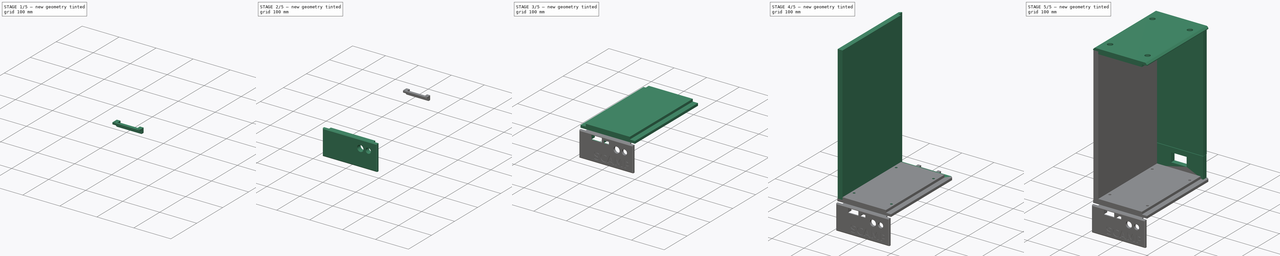
[diagram: build sequence overview — one tinted view per stage of 5, left to right]
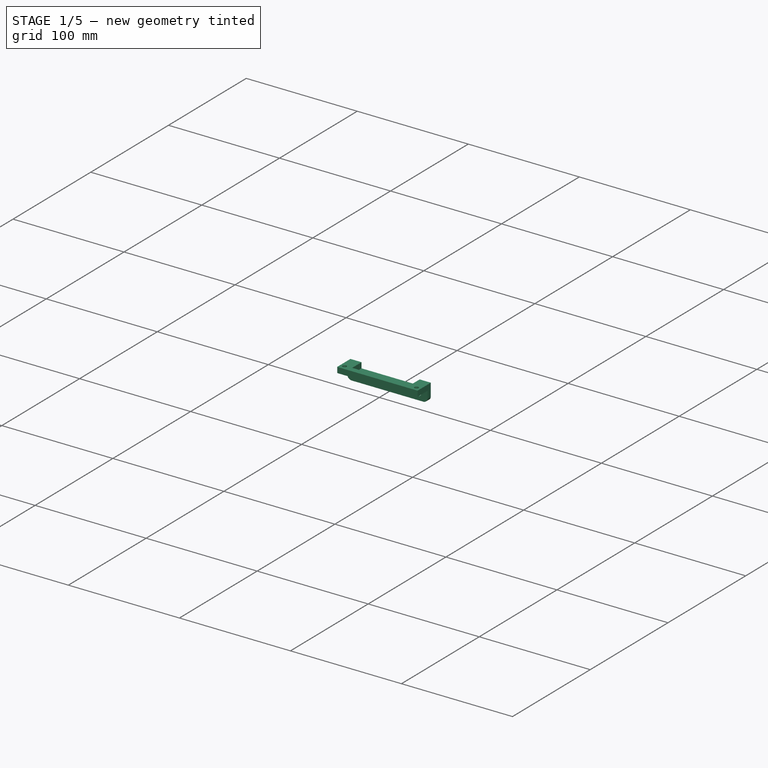
[diagram: stage 1 of 5 — iso view after this stage's code; geometry added in this stage tinted green]
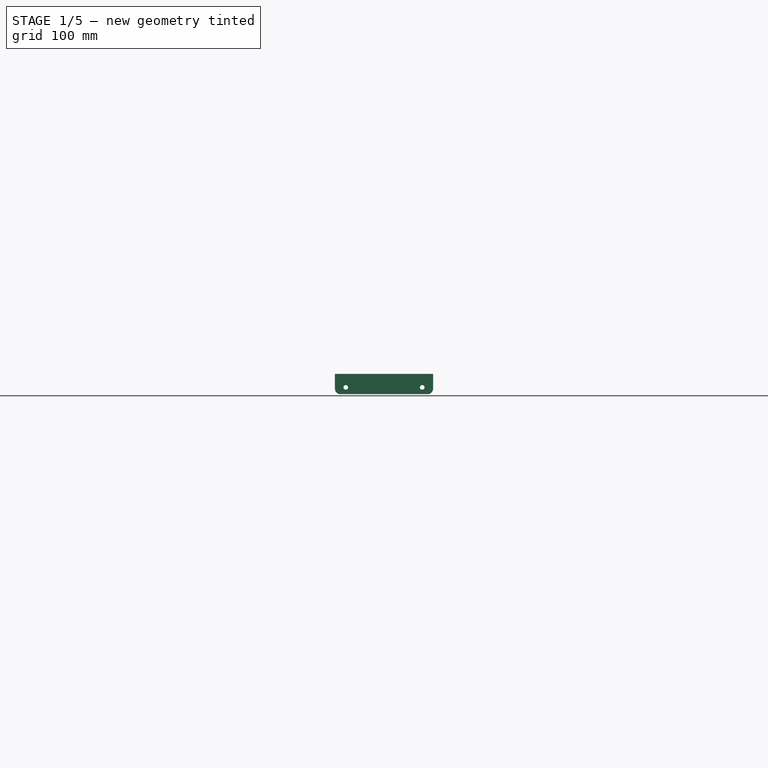
[diagram: stage 1 of 5 — front view after this stage's code; geometry added in this stage tinted green]
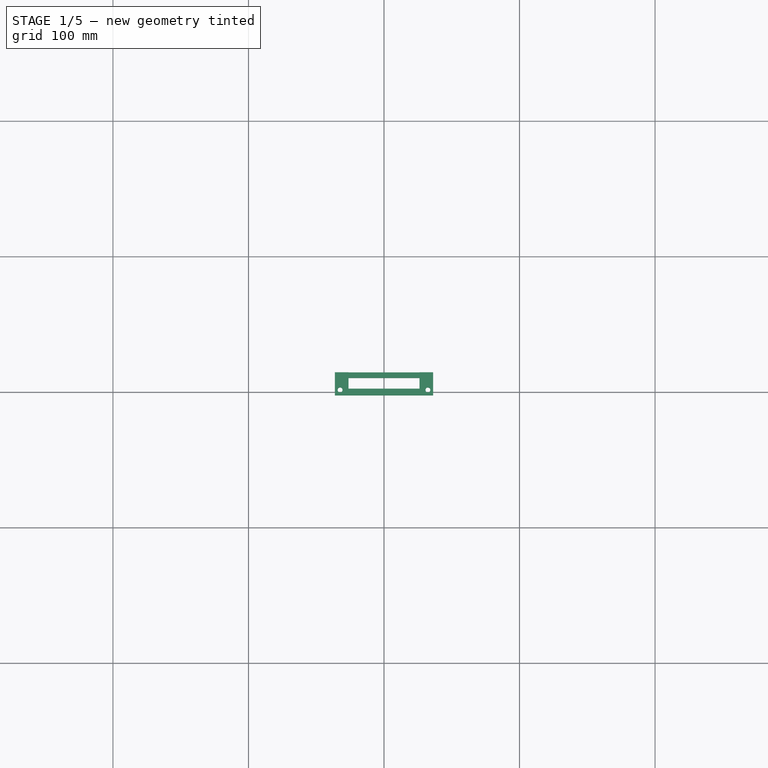
[diagram: stage 1 of 5 — top view after this stage's code; geometry added in this stage tinted green]
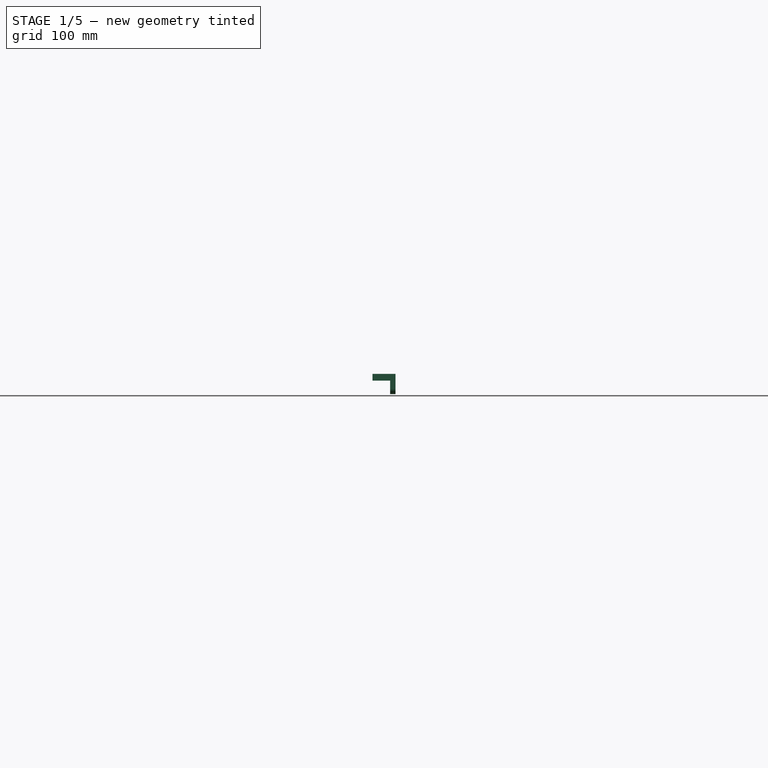
[diagram: stage 1 of 5 — right view after this stage's code; geometry added in this stage tinted green]
FCSTD DOCUMENT  (FreeCAD 0.20R25065 (Git))
Label: case
License: All rights reserved
LicenseURL: http://en.wikipedia.org/wiki/All_rights_reserved
objects: Sketcher::SketchObject×26, PartDesign::Pocket×18, PartDesign::Pad×9, PartDesign::Body×7, PartDesign::Chamfer×6, PartDesign::Fillet×2
note: 103 computed .brp shape members not serialized (recipe doc carries the construction recipe); baked Part::Feature solids carry a one-line shape summary decoded from their .brp

FEATURE [PartDesign::Body] Body005  label="Front"
  Group = -> [Sketch012,Pad005,Sketch013,Pocket007,Pocket008,Chamfer003,Sketch014,Pocket009,Sketch015,Pocket010,Sketch016,Pocket011,Sketch017,Pocket012,Sketch018,Pocket013,Sketch019,Pocket014,Sketch020,Pocket015]
  Origin = -> Origin005
  Tip = -> Pocket015
FEATURE [Sketcher::SketchObject] Sketch021
  FullyConstrained = true
  MapMode = 5
  Support = -> [XY_Plane006]
  sketch-geometry (4):
    g0: LineSegment StartX=-36.2 StartY=2.5 StartZ=0 EndX=36.2 EndY=2.5 EndZ=0
    g1: LineSegment StartX=36.2 StartY=2.5 StartZ=0 EndX=36.2 EndY=-2.5 EndZ=0
    g2: LineSegment StartX=36.2 StartY=-2.5 StartZ=0 EndX=-36.2 EndY=-2.5 EndZ=0
    g3: LineSegment StartX=-36.2 StartY=-2.5 StartZ=0 EndX=-36.2 EndY=2.5 EndZ=0
  constraints (11):
    c: Coincident(g0,g1)
    c: Coincident(g1,g2)
    c: Coincident(g2,g3)
    c: Coincident(g3,g0)
    c: Horizontal(g0)
    c: Horizontal(g2)
    c: Vertical(g1)
    c: Vertical(g3)
    c: Symmetric(g0,g1,g-1)
    c: DistanceX(g0,g0) = 72.4
    c: DistanceY(g3,g3) = 5
FEATURE [PartDesign::Pad] Pad006
  Direction = (0,0,1)
  Length = 5
  Length2 = 100
  Profile = -> Sketch021
  Refine = true
  Type = 0
FEATURE [Sketcher::SketchObject] Sketch022
  ExternalGeometry = -> [Pad006]
  FullyConstrained = true
  MapMode = 5
  Placement = pos=(0,0,5) rot=(0,0,1;0rad)
  Support = -> [Pad006]
  sketch-geometry (8):
    g0: LineSegment StartX=-36.2 StartY=-2.5 StartZ=0 EndX=-26.2 EndY=-2.5 EndZ=0
    g1: LineSegment StartX=-26.2 StartY=-2.5 StartZ=0 EndX=-26.2 EndY=14.5 EndZ=0
    g2: LineSegment StartX=-26.2 StartY=14.5 StartZ=0 EndX=-36.2 EndY=14.5 EndZ=0
    g3: LineSegment StartX=-36.2 StartY=14.5 StartZ=0 EndX=-36.2 EndY=-2.5 EndZ=0
    g4: LineSegment StartX=36.2 StartY=-2.5 StartZ=0 EndX=26.2 EndY=-2.5 EndZ=0
    g5: LineSegment StartX=26.2 StartY=-2.5 StartZ=0 EndX=26.2 EndY=14.5 EndZ=0
    g6: LineSegment StartX=26.2 StartY=14.5 StartZ=0 EndX=36.2 EndY=14.5 EndZ=0
    g7: LineSegment StartX=36.2 StartY=14.5 StartZ=0 EndX=36.2 EndY=-2.5 EndZ=0
  constraints (22):
    c: Coincident(g0,g1)
    c: Coincident(g1,g2)
    c: Coincident(g2,g3)
    c: Coincident(g3,g0)
    c: Horizontal(g0)
    c: Horizontal(g2)
    c: Vertical(g1)
    c: Vertical(g3)
    c: Coincident(g0,g-3)
    c: Coincident(g4,g5)
    c: Coincident(g5,g6)
    c: Coincident(g6,g7)
    c: Coincident(g7,g4)
    c: Horizontal(g4)
    c: Horizontal(g6)
    c: Vertical(g5)
    c: Vertical(g7)
    c: Coincident(g4,g-4)
    c: Equal(g2,g6)
    c: Equal(g1,g5)
    c: DistanceY(g1,g1) = 17
    c: DistanceX(g2,g2) = 10
FEATURE [PartDesign::Pad] Pad007
  BaseFeature = -> Pad006
  Direction = (0,0,1)
  Length = 5
  Length2 = 100
  Profile = -> Sketch022
  Refine = true
  Reversed = true
  Type = 0
FEATURE [Sketcher::SketchObject] Sketch023
  ExternalGeometry = -> [Pad007]
  FullyConstrained = true
  MapMode = 5
  Placement = pos=(0,0,0) rot=(1,0,0;3.14159rad)
  Support = -> [Pad007]
  sketch-geometry (4):
    g0: LineSegment StartX=-36.2 StartY=-14.5 StartZ=0 EndX=36.2 EndY=-14.5 EndZ=0
    g1: LineSegment StartX=36.2 StartY=-14.5 StartZ=0 EndX=36.2 EndY=-10.5 EndZ=0
    g2: LineSegment StartX=36.2 StartY=-10.5 StartZ=0 EndX=-36.2 EndY=-10.5 EndZ=0
    g3: LineSegment StartX=-36.2 StartY=-10.5 StartZ=0 EndX=-36.2 EndY=-14.5 EndZ=0
  constraints (11):
    c: Coincident(g0,g1)
    c: Coincident(g1,g2)
    c: Coincident(g2,g3)
    c: Coincident(g3,g0)
    c: Horizontal(g0)
    c: Horizontal(g2)
    c: Vertical(g1)
    c: Vertical(g3)
    c: Coincident(g0,g-3)
    c: PointOnObject(g1,g-4)
    c: DistanceY(g2,g-3) = 13
FEATURE [PartDesign::Pad] Pad008
  BaseFeature = -> Pad007
  Direction = (0,0,-1)
  Length = 10
  Length2 = 100
  Profile = -> Sketch023
  Refine = true
  Type = 0
FEATURE [Sketcher::SketchObject] Sketch024
  ExternalGeometry = -> [Pad008]
  FullyConstrained = true
  MapMode = 5
  Placement = pos=(-7.417e-13,14.5,-5.3025e-12) rot=(0,0.707107,0.707107;3.14159rad)
  Support = -> [Pad008]
  sketch-geometry (4):
    g0: Circle CenterX=-28.2 CenterY=-5 CenterZ=0 NormalX=0 NormalY=0 NormalZ=1 AngleXU=0 Radius=1.7
    g1: Circle CenterX=28.2 CenterY=-5 CenterZ=0 NormalX=0 NormalY=0 NormalZ=1 AngleXU=0 Radius=1.7
    g2: LineSegment StartX=-28.2 StartY=-5 StartZ=0 EndX=28.2 EndY=-5 EndZ=0
    g3: GeomPoint X=-26.2 Y=-10 Z=0
  constraints (8):
    c: Symmetric(g0,g1,g-2)
    c: Equal(g0,g1)
    c: Radius(g0) = 1.7
    c: DistanceX(g-3,g0) = 8
    c: Coincident(g2,g0)
    c: Coincident(g2,g1)
    c: PointOnObject(g3,g-5)
    c: Symmetric(g3,g-4,g2)
FEATURE [PartDesign::Pocket] Pocket016
  BaseFeature = -> Pad008
  Length = 5
  Length2 = 100
  Profile = -> Sketch024
  Refine = true
  Type = 1
FEATURE [PartDesign::Chamfer] Chamfer004
  Angle = 45
  Base = -> Pocket016 [Edge19,Edge18]
  BaseFeature = -> Pocket016
  ChamferType = 0
  FlipDirection = false
  Refine = true
  Size = 2
  Size2 = 1
  SupportTransform = false
FEATURE [Sketcher::SketchObject] Sketch025
  ExternalGeometry = -> [Chamfer004]
  FullyConstrained = true
  MapMode = 5
  Placement = pos=(0,0,5) rot=(0,0,1;0rad)
  Support = -> [Chamfer004]
  sketch-geometry (2):
    g0: Circle CenterX=-32.4 CenterY=1.5 CenterZ=0 NormalX=0 NormalY=0 NormalZ=1 AngleXU=0 Radius=1.8
    g1: Circle CenterX=32.4 CenterY=1.5 CenterZ=0 NormalX=0 NormalY=0 NormalZ=1 AngleXU=0 Radius=1.8
  constraints (5):
    c: Equal(g1,g0)
    c: Symmetric(g0,g1,g-2)
    c: Radius(g0) = 1.8
    c: DistanceX(g0,g1) = 64.8
    c: DistanceY(g-3,g0) = 4
FEATURE [PartDesign::Pocket] Pocket017
  BaseFeature = -> Chamfer004
  Length = 5
  Length2 = 100
  Profile = -> Sketch025
  Refine = true
  Type = 1
FEATURE [PartDesign::Fillet] Fillet
  Base = -> Pocket017 [Edge32,Edge27]
  BaseFeature = -> Pocket017
  Radius = 4
  Refine = true
  SupportTransform = false
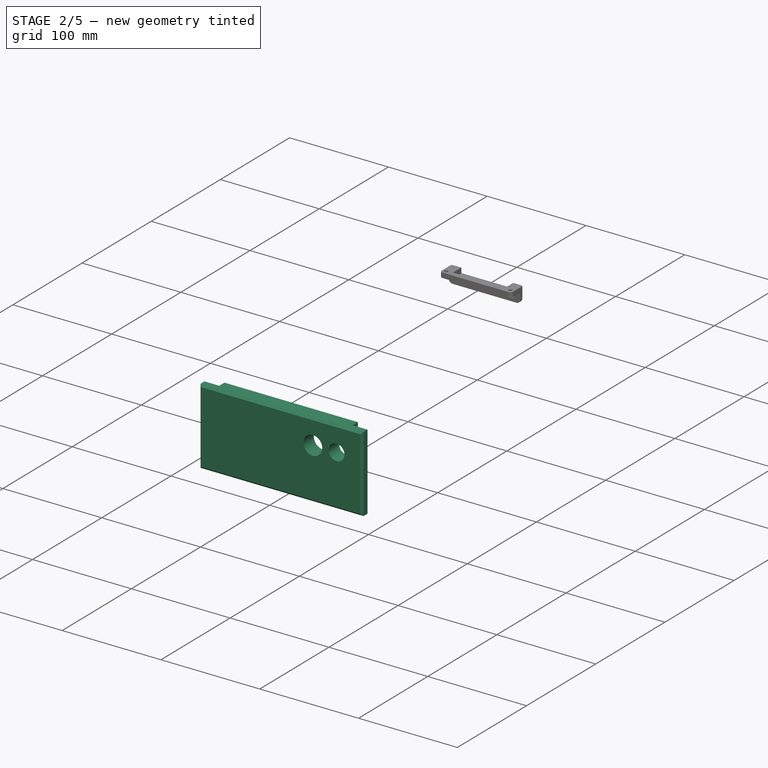
[diagram: stage 2 of 5 — iso view after this stage's code; geometry added in this stage tinted green]
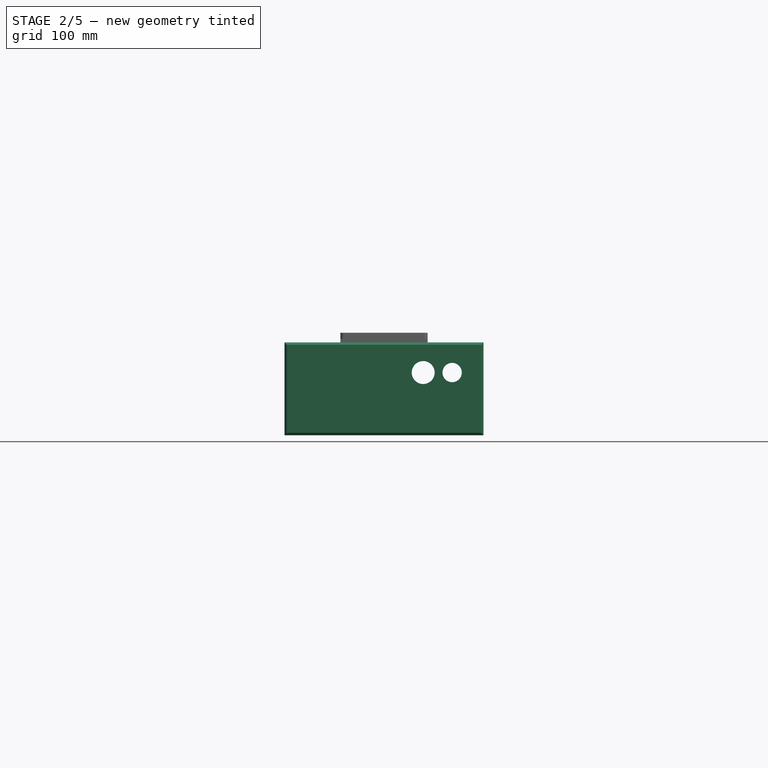
[diagram: stage 2 of 5 — front view after this stage's code; geometry added in this stage tinted green]
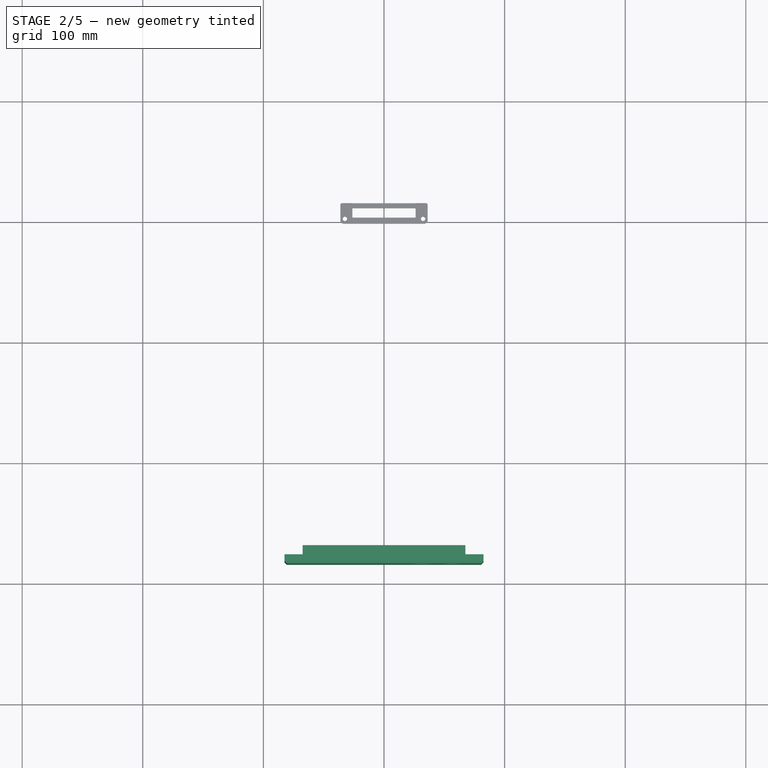
[diagram: stage 2 of 5 — top view after this stage's code; geometry added in this stage tinted green]
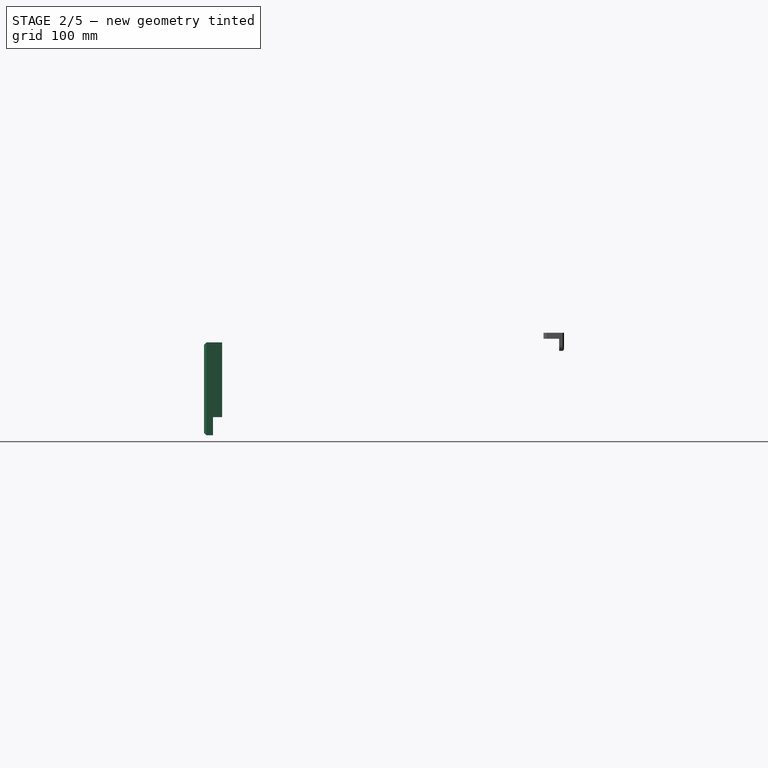
[diagram: stage 2 of 5 — right view after this stage's code; geometry added in this stage tinted green]
FEATURE [PartDesign::Body] Body  label="Bottom"
  Group = -> [Sketch,Pad,Sketch001,Pocket,Sketch002,Pocket001,Sketch003,Pocket002,Chamfer002]
  Origin = -> Origin
  Placement = pos=(0,0,-80) rot=(0,0,1;0rad)
  Tip = -> Chamfer002
FEATURE [Sketcher::SketchObject] Sketch012
  AttachmentOffset = pos=(0,0,269) rot=(0,0,1;0rad)
  FullyConstrained = true
  MapMode = 5
  Placement = pos=(0,-269,5.97e-14) rot=(1,0,0;1.5708rad)
  Support = -> [XZ_Plane005]
  sketch-geometry (4):
    g0: LineSegment StartX=-82.5 StartY=-3 StartZ=0 EndX=82.5 EndY=-3 EndZ=0
    g1: LineSegment StartX=82.5 StartY=-3 StartZ=0 EndX=82.5 EndY=-80 EndZ=0
    g2: LineSegment StartX=82.5 StartY=-80 StartZ=0 EndX=-82.5 EndY=-80 EndZ=0
    g3: LineSegment StartX=-82.5 StartY=-80 StartZ=0 EndX=-82.5 EndY=-3 EndZ=0
  constraints (11):
    c: Coincident(g0,g1)
    c: Coincident(g1,g2)
    c: Coincident(g2,g3)
    c: Coincident(g3,g0)
    c: Horizontal(g2)
    c: Vertical(g1)
    c: Vertical(g3)
    c: DistanceY(g1,g1) = 77
    c: DistanceY(g2,g-1) = 80
    c: DistanceX(g0,g0) = 165
    c: Symmetric(g0,g0,g-2)
FEATURE [PartDesign::Pad] Pad005
  Direction = (0,-1,2e-16)
  Length = 15
  Length2 = 100
  Placement = pos=(0,0,0) rot=(1,0,0;1.5708rad)
  Profile = -> Sketch012
  Refine = true
  Type = 0
FEATURE [Sketcher::SketchObject] Sketch013
  ExternalGeometry = -> [Pad005]
  FullyConstrained = true
  MapMode = 5
  Placement = pos=(0,-269,1.195e-13) rot=(-1,0,0;1.5708rad)
  Support = -> [Pad005]
  sketch-geometry (9):
    g0: LineSegment StartX=-82.5 StartY=3 StartZ=0 EndX=-67.5 EndY=3 EndZ=0
    g1: LineSegment StartX=-67.5 StartY=3 StartZ=0 EndX=-67.5 EndY=65 EndZ=0
    g2: LineSegment StartX=-67.5 StartY=65 StartZ=0 EndX=67.5 EndY=65 EndZ=0
    g3: LineSegment StartX=67.5 StartY=65 StartZ=0 EndX=67.5 EndY=3 EndZ=0
    g4: LineSegment StartX=67.5 StartY=3 StartZ=0 EndX=82.5 EndY=3 EndZ=0
    g5: LineSegment StartX=82.5 StartY=3 StartZ=0 EndX=82.5 EndY=80 EndZ=0
    g6: LineSegment StartX=82.5 StartY=80 StartZ=0 EndX=-82.5 EndY=80 EndZ=0
    g7: LineSegment StartX=-82.5 StartY=80 StartZ=0 EndX=-82.5 EndY=3 EndZ=0
    g8: LineSegment StartX=-67.5 StartY=65 StartZ=0 EndX=-67.5 EndY=80 EndZ=0
  constraints (23):
    c: Coincident(g-3,g0)
    c: Horizontal(g0)
    c: Coincident(g0,g1)
    c: Vertical(g1)
    c: Coincident(g1,g2)
    c: Horizontal(g2)
    c: Coincident(g2,g3)
    c: Vertical(g3)
    c: Coincident(g3,g4)
    c: Coincident(g4,g-4)
    c: Coincident(g4,g5)
    c: Coincident(g5,g-4)
    c: Coincident(g5,g6)
    c: Coincident(g6,g-3)
    c: Coincident(g6,g7)
    c: Coincident(g7,g0)
    c: Horizontal(g4)
    c: Coincident(g8,g1)
    c: PointOnObject(g8,g6)
    c: Vertical(g8)
    c: Equal(g8,g0)
    c: Equal(g0,g4)
    c: DistanceX(g0,g0) = 15
FEATURE [PartDesign::Pocket] Pocket007
  BaseFeature = -> Pad005
  Length = 7.5
  Length2 = 100
  Placement = pos=(0,0,0) rot=(1,0,0;1.5708rad)
  Profile = -> Sketch013
  Refine = true
  Type = 0
FEATURE [PartDesign::Pocket] Pocket008
  BaseFeature = -> Pocket007
  Length = 7.5
  Length2 = 100
  Placement = pos=(0,0,0) rot=(1,0,0;1.5708rad)
  Profile = -> Sketch013
  Refine = true
  Type = 0
FEATURE [PartDesign::Chamfer] Chamfer003
  Angle = 45
  Base = -> Pocket008 [Edge23,Edge7,Edge21,Edge22]
  BaseFeature = -> Pocket008
  ChamferType = 0
  FlipDirection = false
  Placement = pos=(0,0,0) rot=(1,0,0;1.5708rad)
  Refine = true
  Size = 2
  Size2 = 1
  SupportTransform = false
FEATURE [Sketcher::SketchObject] Sketch014
  ExternalGeometry = -> [Chamfer003]
  FullyConstrained = true
  MapMode = 5
  Placement = pos=(0,-284,3.784e-13) rot=(1,0,0;1.5708rad)
  Support = -> [Chamfer003]
  sketch-geometry (2):
    g0: Circle CenterX=56.5 CenterY=-28 CenterZ=0 NormalX=0 NormalY=0 NormalZ=1 AngleXU=0 Radius=8
    g1: Circle CenterX=32.5 CenterY=-28 CenterZ=0 NormalX=0 NormalY=0 NormalZ=1 AngleXU=0 Radius=9.5
  constraints (6):
    c: Radius(g1) = 9.5
    c: Radius(g0) = 8
    c: DistanceX(g0,g-3) = 26
    c: DistanceY(g0,g-3) = 25
    c: DistanceX(g1,g0) = 24
    c: Horizontal(g1,g0)
FEATURE [PartDesign::Pocket] Pocket009  label="ButtonHoles"
  BaseFeature = -> Chamfer003
  Length = 5
  Length2 = 100
  Placement = pos=(0,0,0) rot=(1,0,0;1.5708rad)
  Profile = -> Sketch014
  Refine = true
  Type = 1
FEATURE [PartDesign::Fillet] Fillet001
  Base = -> Fillet [Edge38,Edge16]
  BaseFeature = -> Fillet
  Radius = 3
  Refine = true
  SupportTransform = false
FEATURE [PartDesign::Chamfer] Chamfer005
  Angle = 45
  Base = -> Fillet001 [Edge25]
  BaseFeature = -> Fillet001
  ChamferType = 0
  FlipDirection = false
  Refine = true
  Size = 1
  Size2 = 1
  SupportTransform = false
FEATURE [PartDesign::Body] Body006  label="PCBHolder"
  Group = -> [Sketch021,Pad006,Sketch022,Pad007,Sketch023,Pad008,Sketch024,Pocket016,Chamfer004,Sketch025,Pocket017,Fillet,Fillet001,Chamfer005]
  Origin = -> Origin006
  Placement = pos=(-21.5,-279,-37) rot=(0,0,1;0rad)
  Tip = -> Chamfer005
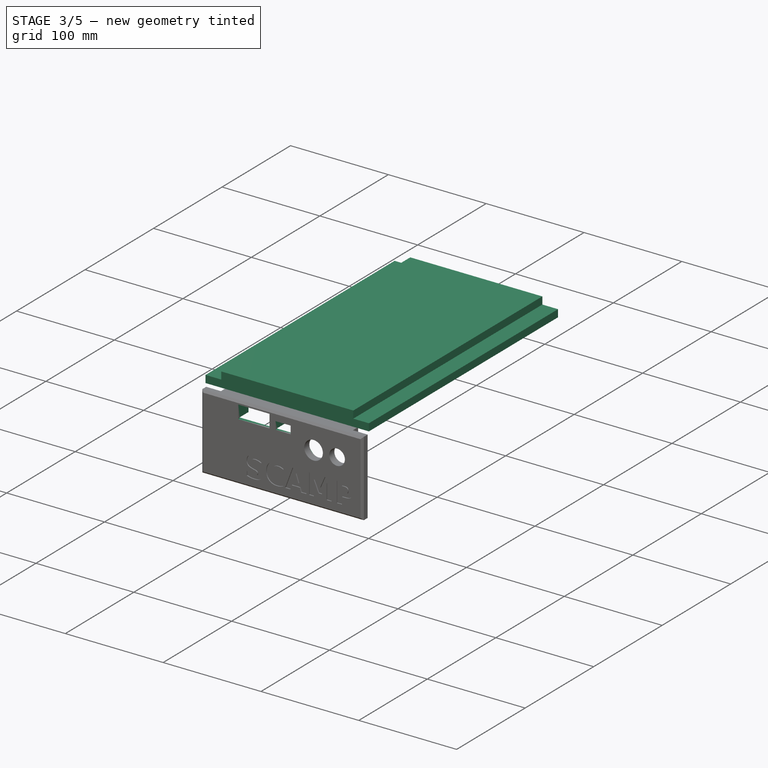
[diagram: stage 3 of 5 — iso view after this stage's code; geometry added in this stage tinted green]
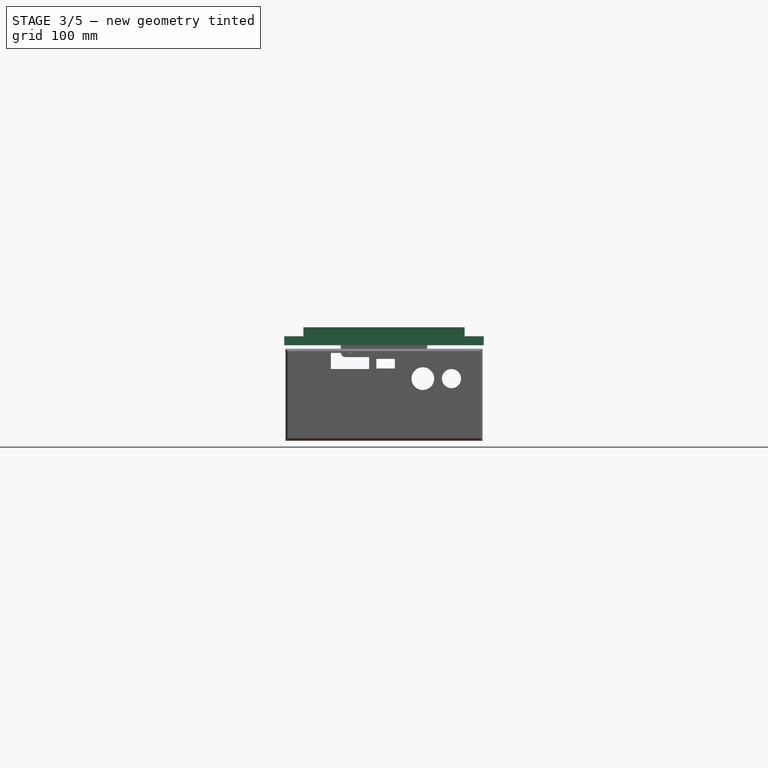
[diagram: stage 3 of 5 — front view after this stage's code; geometry added in this stage tinted green]
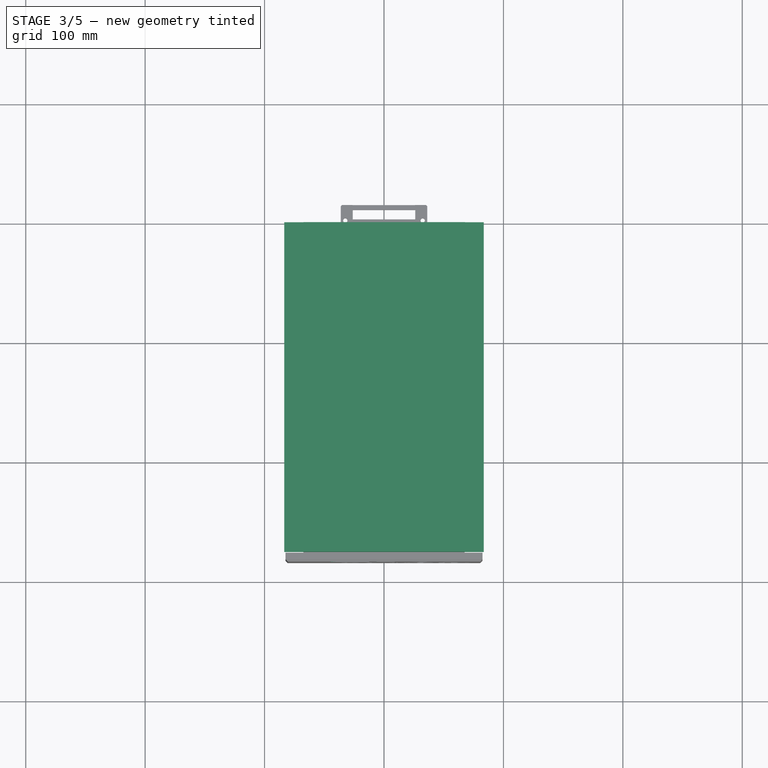
[diagram: stage 3 of 5 — top view after this stage's code; geometry added in this stage tinted green]
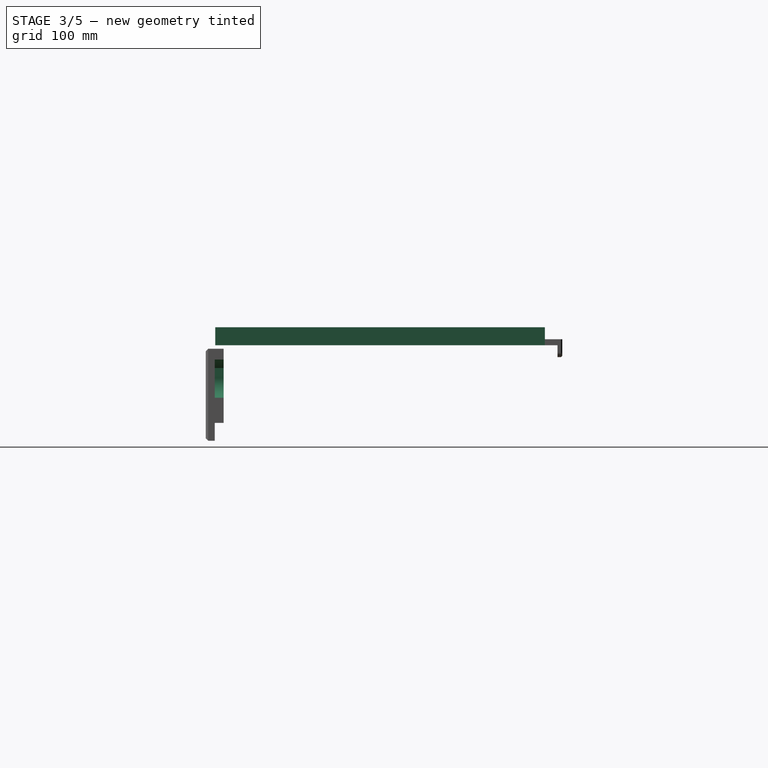
[diagram: stage 3 of 5 — right view after this stage's code; geometry added in this stage tinted green]
FEATURE [Sketcher::SketchObject] Sketch
  FullyConstrained = true
  MapMode = 5
  Placement = pos=(0,0,0) rot=(1,0,0;1.5708rad)
  Support = -> [XZ_Plane]
  sketch-geometry (8):
    g0: LineSegment StartX=-83.5 StartY=7.5 StartZ=0 EndX=-83.5 EndY=0 EndZ=0
    g1: LineSegment StartX=-83.5 StartY=0 StartZ=0 EndX=83.5 EndY=0 EndZ=0
    g2: LineSegment StartX=83.5 StartY=0 StartZ=0 EndX=83.5 EndY=7.5 EndZ=0
    g3: LineSegment StartX=83.5 StartY=7.5 StartZ=0 EndX=67.5 EndY=7.5 EndZ=0
    g4: LineSegment StartX=67.5 StartY=7.5 StartZ=0 EndX=67.5 EndY=15 EndZ=0
    g5: LineSegment StartX=67.5 StartY=15 StartZ=0 EndX=-67.5 EndY=15 EndZ=0
    g6: LineSegment StartX=-67.5 StartY=15 StartZ=0 EndX=-67.5 EndY=7.5 EndZ=0
    g7: LineSegment StartX=-67.5 StartY=7.5 StartZ=0 EndX=-83.5 EndY=7.5 EndZ=0
  constraints (22):
    c: PointOnObject(g0,g-1)
    c: Coincident(g0,g1)
    c: Coincident(g1,g2)
    c: Coincident(g2,g3)
    c: Horizontal(g3)
    c: Coincident(g3,g4)
    c: Coincident(g4,g5)
    c: Horizontal(g5)
    c: Coincident(g5,g6)
    c: Coincident(g6,g7)
    c: Coincident(g7,g0)
    c: Horizontal(g7)
    c: Vertical(g6)
    c: Vertical(g0)
    c: Vertical(g4)
    c: Vertical(g2)
    c: Symmetric(g1,g0,g-2)
    c: DistanceX(g3,g3) = 16
    c: DistanceY(g4,g4) = 7.5
    c: DistanceX(g5,g5) = 135
    c: Symmetric(g6,g3,g-2)
    c: DistanceY(g0,g5) = 15
FEATURE [PartDesign::Pad] Pad
  Direction = (0,-1,-2e-16)
  Length = 276
  Length2 = 100
  Placement = pos=(0,0,0) rot=(1,0,0;1.5708rad)
  Profile = -> Sketch
  Refine = true
  Type = 0
FEATURE [Sketcher::SketchObject] Sketch015
  ExternalGeometry = -> [Pocket009]
  FullyConstrained = true
  MapMode = 5
  Placement = pos=(0,-269,4.778e-13) rot=(-1,0,0;1.5708rad)
  Support = -> [Pocket009]
  sketch-geometry (4):
    g0: ArcOfCircle CenterX=32.5 CenterY=28 CenterZ=0 NormalX=0 NormalY=0 NormalZ=1 AngleXU=0 Radius=16 StartAngle=1.5708 EndAngle=4.71239
    g1: ArcOfCircle CenterX=132.5 CenterY=28 CenterZ=0 NormalX=0 NormalY=0 NormalZ=1 AngleXU=0 Radius=16 StartAngle=4.71239 EndAngle=7.85398
    g2: LineSegment StartX=32.5 StartY=12 StartZ=0 EndX=132.5 EndY=12 EndZ=0
    g3: LineSegment StartX=32.5 StartY=44 StartZ=0 EndX=132.5 EndY=44 EndZ=0
  constraints (9):
    c: Tangent(g0,g3) = 1.5708
    c: Tangent(g0,g2) = -1.5708
    c: Tangent(g2,g1) = -1.5708
    c: Tangent(g3,g1) = 1.5708
    c: Horizontal(g2)
    c: Equal(g0,g1)
    c: Coincident(g0,g-3)
    c: Radius(g0) = 16
    c: DistanceX(g0,g1) = 100
FEATURE [PartDesign::Pocket] Pocket010  label="ButtonBackRelief"
  BaseFeature = -> Pocket009
  Length = 7.5
  Length2 = 100
  Placement = pos=(0,0,0) rot=(1,0,0;1.5708rad)
  Profile = -> Sketch015
  Refine = true
  Type = 0
FEATURE [Sketcher::SketchObject] Sketch016
  FullyConstrained = false
  MapMode = 5
  Placement = pos=(0,-284,6.306e-13) rot=(1,0,0;1.5708rad)
  Support = -> [Pocket010]
  sketch-geometry (86):
    g0: LineSegment StartX=-21.0109 StartY=-50.0795 StartZ=0 EndX=-21.0109 EndY=-54.4537 EndZ=0
    g1: BSplineCurve PolesCount=3 KnotsCount=2 Degree=2 IsPeriodic=0
    g2: BSplineCurve PolesCount=3 KnotsCount=2 Degree=2 IsPeriodic=0
    g3: BSplineCurve PolesCount=3 KnotsCount=2 Degree=2 IsPeriodic=0
    g4: BSplineCurve PolesCount=3 KnotsCount=2 Degree=2 IsPeriodic=0
    g5: BSplineCurve PolesCount=3 KnotsCount=2 Degree=2 IsPeriodic=0
    g6: BSplineCurve PolesCount=3 KnotsCount=2 Degree=2 IsPeriodic=0
    g7: LineSegment StartX=-27.932 StartY=-62.3807 StartZ=0 EndX=-29.9992 EndY=-61.9008 EndZ=0
    g8: BSplineCurve PolesCount=3 KnotsCount=2 Degree=2 IsPeriodic=0
    g9: BSplineCurve PolesCount=3 KnotsCount=2 Degree=2 IsPeriodic=0
    g10: BSplineCurve PolesCount=3 KnotsCount=2 Degree=2 IsPeriodic=0
    g11: BSplineCurve PolesCount=3 KnotsCount=2 Degree=2 IsPeriodic=0
    g12: BSplineCurve PolesCount=3 KnotsCount=2 Degree=2 IsPeriodic=0
    g13: BSplineCurve PolesCount=3 KnotsCount=2 Degree=2 IsPeriodic=0
    g14: LineSegment StartX=-35.7852 StartY=-69.6341 StartZ=0 EndX=-35.7852 EndY=-65.0846 EndZ=0
    g15: BSplineCurve PolesCount=3 KnotsCount=2 Degree=2 IsPeriodic=0
    g16: BSplineCurve PolesCount=3 KnotsCount=2 Degree=2 IsPeriodic=0
    g17: BSplineCurve PolesCount=3 KnotsCount=2 Degree=2 IsPeriodic=0
    g18: BSplineCurve PolesCount=3 KnotsCount=2 Degree=2 IsPeriodic=0
    g19: BSplineCurve PolesCount=3 KnotsCount=2 Degree=2 IsPeriodic=0
    g20: BSplineCurve PolesCount=3 KnotsCount=2 Degree=2 IsPeriodic=0
    g21: LineSegment StartX=-28.2827 StartY=-57.3237 StartZ=0 EndX=-26.0126 EndY=-57.8035 EndZ=0
    g22: BSplineCurve PolesCount=3 KnotsCount=2 Degree=2 IsPeriodic=0
    g23: BSplineCurve PolesCount=3 KnotsCount=2 Degree=2 IsPeriodic=0
    g24: BSplineCurve PolesCount=3 KnotsCount=2 Degree=2 IsPeriodic=0
    g25: BSplineCurve PolesCount=3 KnotsCount=2 Degree=2 IsPeriodic=0
    g26: BSplineCurve PolesCount=3 KnotsCount=2 Degree=2 IsPeriodic=0
    g27: BSplineCurve PolesCount=3 KnotsCount=2 Degree=2 IsPeriodic=0
    g28: BSplineCurve PolesCount=3 KnotsCount=2 Degree=2 IsPeriodic=0
    g29: LineSegment StartX=1.66275 StartY=-65.6752 StartZ=0 EndX=1.66275 EndY=-69.5787 EndZ=0
    g30: BSplineCurve PolesCount=3 KnotsCount=2 Degree=2 IsPeriodic=0
    g31: BSplineCurve PolesCount=3 KnotsCount=2 Degree=2 IsPeriodic=0
    g32: BSplineCurve PolesCount=3 KnotsCount=2 Degree=2 IsPeriodic=0
    g33: BSplineCurve PolesCount=3 KnotsCount=2 Degree=2 IsPeriodic=0
    g34: BSplineCurve PolesCount=3 KnotsCount=2 Degree=2 IsPeriodic=0
    g35: BSplineCurve PolesCount=3 KnotsCount=2 Degree=2 IsPeriodic=0
    g36: BSplineCurve PolesCount=3 KnotsCount=2 Degree=2 IsPeriodic=0
    g37: BSplineCurve PolesCount=3 KnotsCount=2 Degree=2 IsPeriodic=0
    g38: LineSegment StartX=1.66275 StartY=-50.5502 StartZ=0 EndX=1.66275 EndY=-54.4537 EndZ=0
    g39: BSplineCurve PolesCount=3 KnotsCount=2 Degree=2 IsPeriodic=0
    g40: BSplineCurve PolesCount=3 KnotsCount=2 Degree=2 IsPeriodic=0
    g41: BSplineCurve PolesCount=3 KnotsCount=2 Degree=2 IsPeriodic=0
    g42: BSplineCurve PolesCount=3 KnotsCount=2 Degree=2 IsPeriodic=0
    g43: BSplineCurve PolesCount=3 KnotsCount=2 Degree=2 IsPeriodic=0
    g44: BSplineCurve PolesCount=3 KnotsCount=2 Degree=2 IsPeriodic=0
    g45: BSplineCurve PolesCount=3 KnotsCount=2 Degree=2 IsPeriodic=0
    g46: LineSegment StartX=18.4857 StartY=-66.2658 StartZ=0 EndX=10.1527 EndY=-66.2658 EndZ=0
    g47: LineSegment StartX=19.7869 StartY=-70.4 StartZ=0 EndX=18.4857 EndY=-66.2658 EndZ=0
    g48: LineSegment StartX=25.1485 StartY=-70.4 StartZ=0 EndX=19.7869 EndY=-70.4 EndZ=0
    g49: LineSegment StartX=17.4891 StartY=-49.7289 StartZ=0 EndX=25.1485 EndY=-70.4 EndZ=0
    g50: LineSegment StartX=11.1401 StartY=-49.7289 StartZ=0 EndX=17.4891 EndY=-49.7289 EndZ=0
    g51: LineSegment StartX=3.4807 StartY=-70.4 StartZ=0 EndX=11.1401 EndY=-49.7289 EndZ=0
    g52: LineSegment StartX=8.84228 StartY=-70.4 StartZ=0 EndX=3.4807 EndY=-70.4 EndZ=0
    g53: LineSegment StartX=10.1527 StartY=-66.2658 StartZ=0 EndX=8.84228 EndY=-70.4 EndZ=0
    g54: LineSegment StartX=11.4815 StartY=-62.7221 StartZ=0 EndX=17.1477 EndY=-62.7221 EndZ=0
    g55: LineSegment StartX=14.3238 StartY=-54.546 StartZ=0 EndX=11.4815 EndY=-62.7221 EndZ=0
    g56: LineSegment StartX=17.1477 StartY=-62.7221 StartZ=0 EndX=14.3238 EndY=-54.546 EndZ=0
    g57: LineSegment StartX=27.797 StartY=-49.7289 StartZ=0 EndX=34.5797 EndY=-49.7289 EndZ=0
    g58: LineSegment StartX=27.797 StartY=-70.4 StartZ=0 EndX=27.797 EndY=-49.7289 EndZ=0
    g59: LineSegment StartX=32.854 StartY=-70.4 StartZ=0 EndX=27.797 EndY=-70.4 EndZ=0
    g60: LineSegment StartX=32.854 StartY=-55.2289 StartZ=0 EndX=32.854 EndY=-70.4 EndZ=0
    g61: LineSegment StartX=37.6158 StartY=-66.2658 StartZ=0 EndX=32.854 EndY=-55.2289 EndZ=0
    g62: LineSegment StartX=40.9933 StartY=-66.2658 StartZ=0 EndX=37.6158 EndY=-66.2658 EndZ=0
    g63: LineSegment StartX=45.755 StartY=-55.2289 StartZ=0 EndX=40.9933 EndY=-66.2658 EndZ=0
    g64: LineSegment StartX=45.755 StartY=-70.4 StartZ=0 EndX=45.755 EndY=-55.2289 EndZ=0
    g65: LineSegment StartX=50.7936 StartY=-70.4 StartZ=0 EndX=45.755 EndY=-70.4 EndZ=0
    g66: LineSegment StartX=50.7936 StartY=-49.7289 StartZ=0 EndX=50.7936 EndY=-70.4 EndZ=0
    g67: LineSegment StartX=44.0201 StartY=-49.7289 StartZ=0 EndX=50.7936 EndY=-49.7289 EndZ=0
    g68: LineSegment StartX=39.2861 StartY=-60.6827 StartZ=0 EndX=44.0201 EndY=-49.7289 EndZ=0
    g69: LineSegment StartX=34.5797 StartY=-49.7289 StartZ=0 EndX=39.2861 EndY=-60.6827 EndZ=0
    g70: LineSegment StartX=56.146 StartY=-49.7289 StartZ=0 EndX=64.9958 EndY=-49.7289 EndZ=0
    g71: LineSegment StartX=56.146 StartY=-70.4 StartZ=0 EndX=56.146 EndY=-49.7289 EndZ=0
    g72: LineSegment StartX=61.4799 StartY=-70.4 StartZ=0 EndX=56.146 EndY=-70.4 EndZ=0
    g73: LineSegment StartX=61.4799 StartY=-63.3128 StartZ=0 EndX=61.4799 EndY=-70.4 EndZ=0
    g74: LineSegment StartX=64.9958 StartY=-63.3128 StartZ=0 EndX=61.4799 EndY=-63.3128 EndZ=0
    g75: BSplineCurve PolesCount=3 KnotsCount=2 Degree=2 IsPeriodic=0
    g76: BSplineCurve PolesCount=3 KnotsCount=2 Degree=2 IsPeriodic=0
    g77: BSplineCurve PolesCount=3 KnotsCount=2 Degree=2 IsPeriodic=0
    g78: BSplineCurve PolesCount=3 KnotsCount=2 Degree=2 IsPeriodic=0
    g79: LineSegment StartX=61.4799 StartY=-53.2725 StartZ=0 EndX=61.4799 EndY=-59.7691 EndZ=0
    g80: LineSegment StartX=64.4237 StartY=-53.2725 StartZ=0 EndX=61.4799 EndY=-53.2725 EndZ=0
    g81: BSplineCurve PolesCount=3 KnotsCount=2 Degree=2 IsPeriodic=0
    g82: BSplineCurve PolesCount=3 KnotsCount=2 Degree=2 IsPeriodic=0
    g83: BSplineCurve PolesCount=3 KnotsCount=2 Degree=2 IsPeriodic=0
    g84: BSplineCurve PolesCount=3 KnotsCount=2 Degree=2 IsPeriodic=0
    g85: LineSegment StartX=61.4799 StartY=-59.7691 StartZ=0 EndX=64.4237 EndY=-59.7691 EndZ=0
  constraints (112):
    c: Vertical(g0)
    c: Coincident(g0,g1)
    c: Coincident(g1,g2)
    c: Coincident(g2,g3)
    c: Coincident(g3,g4)
    c: Coincident(g4,g5)
    c: Coincident(g5,g6)
    c: Coincident(g6,g7)
    c: Coincident(g7,g8)
    c: Coincident(g8,g9)
    c: Coincident(g9,g10)
    c: Coincident(g10,g11)
    c: Coincident(g11,g12)
    c: Coincident(g12,g13)
    c: Coincident(g13,g14)
    c: Vertical(g14)
    c: Coincident(g14,g15)
    c: Coincident(g15,g16)
    c: Coincident(g16,g17)
    c: Coincident(g17,g18)
    c: Coincident(g18,g19)
    c: Coincident(g19,g20)
    c: Coincident(g20,g21)
    c: Coincident(g21,g22)
    c: Coincident(g22,g23)
    c: Coincident(g23,g24)
    c: Coincident(g24,g25)
    c: Coincident(g25,g26)
    c: Coincident(g26,g27)
    c: Coincident(g27,g0)
    c: Coincident(g28,g29)
    c: Vertical(g29)
    c: Coincident(g29,g30)
    c: Coincident(g30,g31)
    c: Coincident(g31,g32)
    c: Coincident(g32,g33)
    c: Coincident(g33,g34)
    c: Coincident(g34,g35)
    c: Coincident(g35,g36)
    c: Coincident(g36,g37)
    c: Coincident(g37,g38)
    c: Vertical(g38)
    c: Coincident(g38,g39)
    c: Coincident(g39,g40)
    c: Coincident(g40,g41)
    c: Coincident(g41,g42)
    c: Coincident(g42,g43)
    c: Coincident(g43,g44)
    c: Coincident(g44,g45)
    c: Coincident(g45,g28)
    c: Horizontal(g46)
    c: Coincident(g46,g47)
    c: Coincident(g47,g48)
    c: Horizontal(g48)
    c: Coincident(g48,g49)
    c: Coincident(g49,g50)
    c: Horizontal(g50)
    c: Coincident(g50,g51)
    c: Coincident(g51,g52)
    c: Horizontal(g52)
    c: Coincident(g52,g53)
    c: Coincident(g53,g46)
    c: Horizontal(g54)
    c: Coincident(g54,g55)
    c: Coincident(g55,g56)
    c: Coincident(g56,g54)
    c: Horizontal(g57)
    c: Coincident(g57,g58)
    c: Vertical(g58)
    c: Coincident(g58,g59)
    c: Horizontal(g59)
    c: Coincident(g59,g60)
    c: Vertical(g60)
    c: Coincident(g60,g61)
    c: Coincident(g61,g62)
    c: Horizontal(g62)
    c: Coincident(g62,g63)
    c: Coincident(g63,g64)
    c: Vertical(g64)
    c: Coincident(g64,g65)
    c: Horizontal(g65)
    c: Coincident(g65,g66)
    c: Vertical(g66)
    c: Coincident(g66,g67)
    c: Horizontal(g67)
    c: Coincident(g67,g68)
    c: Coincident(g68,g69)
    c: Coincident(g69,g57)
    c: Horizontal(g70)
    c: Coincident(g70,g71)
    c: Vertical(g71)
    c: Coincident(g71,g72)
    c: Horizontal(g72)
    c: Coincident(g72,g73)
    c: Vertical(g73)
    c: Coincident(g73,g74)
    c: Horizontal(g74)
    c: Coincident(g74,g75)
    c: Coincident(g75,g76)
    c: Coincident(g76,g77)
    c: Coincident(g77,g78)
    c: Coincident(g78,g70)
    c: Vertical(g79)
    c: Coincident(g79,g80)
    c: Horizontal(g80)
    c: Coincident(g80,g81)
    c: Coincident(g81,g82)
    c: Coincident(g82,g83)
    c: Coincident(g83,g84)
    c: Coincident(g84,g85)
    c: Horizontal(g85)
    c: Coincident(g85,g79)
FEATURE [PartDesign::Pocket] Pocket011  label="Logo"
  BaseFeature = -> Pocket010
  Length = 1
  Length2 = 100
  Placement = pos=(0,0,0) rot=(1,0,0;1.5708rad)
  Profile = -> Sketch016
  Refine = true
  Type = 0
FEATURE [Sketcher::SketchObject] Sketch017
  ExternalGeometry = -> [Pocket011]
  FullyConstrained = true
  MapMode = 5
  Placement = pos=(0,-284,7.567e-13) rot=(1,0,0;1.5708rad)
  Support = -> [Pocket011]
  sketch-geometry (12):
    g0: LineSegment StartX=-44 StartY=-6.9 StartZ=0 EndX=-13 EndY=-6.9 EndZ=0
    g1: LineSegment StartX=-13 StartY=-6.9 StartZ=0 EndX=-13 EndY=-19.4 EndZ=0
    g2: LineSegment StartX=-13 StartY=-19.4 StartZ=0 EndX=-44 EndY=-19.4 EndZ=0
    g3: LineSegment StartX=-44 StartY=-19.4 StartZ=0 EndX=-44 EndY=-6.9 EndZ=0
    g4: LineSegment StartX=-5.4 StartY=-12 StartZ=0 EndX=9.1 EndY=-12 EndZ=0
    g5: LineSegment StartX=9.1 StartY=-12 StartZ=0 EndX=9.1 EndY=-19 EndZ=0
    g6: LineSegment StartX=9.1 StartY=-19 StartZ=0 EndX=-5.4 EndY=-19 EndZ=0
    g7: LineSegment StartX=-5.4 StartY=-19 StartZ=0 EndX=-5.4 EndY=-12 EndZ=0
    g8: LineSegment StartX=-53.5 StartY=-19.4 StartZ=0 EndX=18.9 EndY=-19.4 EndZ=0
    g9: LineSegment StartX=18.9 StartY=-19.4 StartZ=0 EndX=18.9 EndY=-21 EndZ=0
    g10: LineSegment StartX=18.9 StartY=-21 StartZ=0 EndX=-53.5 EndY=-21 EndZ=0
    g11: LineSegment StartX=-53.5 StartY=-21 StartZ=0 EndX=-53.5 EndY=-19.4 EndZ=0
  constraints (36):
    c: Coincident(g0,g1)
    c: Coincident(g1,g2)
    c: Coincident(g2,g3)
    c: Coincident(g3,g0)
    c: Horizontal(g0)
    c: Horizontal(g2)
    c: Vertical(g1)
    c: Vertical(g3)
    c: Coincident(g4,g5)
    c: Coincident(g5,g6)
    c: Coincident(g6,g7)
    c: Coincident(g7,g4)
    c: Horizontal(g4)
    c: Horizontal(g6)
    c: Vertical(g5)
    c: Vertical(g7)
    c: DistanceX(g0,g0) = 31
    c: DistanceY(g3,g3) = 12.5
    c: DistanceX(g4,g4) = 14.5
    c: DistanceY(g7,g7) = 7
    c: DistanceX(g0,g4) = 7.6
    c: DistanceY(g1,g6) = 0.4
    c: Coincident(g8,g9)
    c: Coincident(g9,g10)
    c: Coincident(g10,g11)
    c: Coincident(g11,g8)
    c: Horizontal(g8)
    c: Horizontal(g10)
    c: Vertical(g9)
    c: Vertical(g11)
    c: PointOnObject(g2,g8)
    c: DistanceY(g11,g11) = 1.6
    c: DistanceX(g10,g10) = 72.4
    c: DistanceX(g8,g2) = 9.5
    c: DistanceX(g-4,g10) = 14
    c: DistanceY(g-3,g4) = 16
FEATURE [PartDesign::Pocket] Pocket012  label="Connectors"
  BaseFeature = -> Pocket011
  Length = 5
  Length2 = 100
  Placement = pos=(0,0,0) rot=(1,0,0;1.5708rad)
  Profile = -> Sketch017
  Refine = true
  Type = 1
FEATURE [Sketcher::SketchObject] Sketch018
  ExternalGeometry = -> [Pocket012]
  FullyConstrained = true
  MapMode = 5
  Placement = pos=(0,-269,8.362e-13) rot=(-1,0,0;1.5708rad)
  Support = -> [Pocket012]
  sketch-geometry (4):
    g0: LineSegment StartX=-53.8 StartY=26.4 StartZ=0 EndX=19.2 EndY=26.4 EndZ=0
    g1: LineSegment StartX=19.2 StartY=26.4 StartZ=0 EndX=19.2 EndY=19 EndZ=0
    g2: LineSegment StartX=19.2 StartY=19 StartZ=0 EndX=-53.8 EndY=19 EndZ=0
    g3: LineSegment StartX=-53.8 StartY=19 StartZ=0 EndX=-53.8 EndY=26.4 EndZ=0
  constraints (12):
    c: Coincident(g0,g1)
    c: Coincident(g1,g2)
    c: Coincident(g2,g3)
    c: Coincident(g3,g0)
    c: Horizontal(g0)
    c: Horizontal(g2)
    c: Vertical(g1)
    c: Vertical(g3)
    c: PointOnObject(g-4,g2)
    c: DistanceY(g-3,g0) = 7
    c: DistanceX(g0,g0) = 73
    c: DistanceX(g2,g-3) = 9.8
FEATURE [PartDesign::Pocket] Pocket013  label="PCBRelief"
  BaseFeature = -> Pocket012
  Length = 13
  Length2 = 100
  Placement = pos=(0,0,0) rot=(1,0,0;1.5708rad)
  Profile = -> Sketch018
  Refine = true
  Type = 0
FEATURE [Sketcher::SketchObject] Sketch019
  ExternalGeometry = -> [Pocket013]
  FullyConstrained = true
  MapMode = 5
  Placement = pos=(0,-284,1.009e-12) rot=(1,0,0;1.5708rad)
  Support = -> [Pocket013]
  sketch-geometry (8):
    g0: LineSegment StartX=-44.5 StartY=-6.4 StartZ=0 EndX=-12.5 EndY=-6.4 EndZ=0
    g1: LineSegment StartX=-12.5 StartY=-6.4 StartZ=0 EndX=-12.5 EndY=-19.9 EndZ=0
    g2: LineSegment StartX=-12.5 StartY=-19.9 StartZ=0 EndX=-44.5 EndY=-19.9 EndZ=0
    g3: LineSegment StartX=-44.5 StartY=-19.9 StartZ=0 EndX=-44.5 EndY=-6.4 EndZ=0
    g4: LineSegment StartX=-6.4 StartY=-11.5 StartZ=0 EndX=9.1 EndY=-11.5 EndZ=0
    g5: LineSegment StartX=9.1 StartY=-11.5 StartZ=0 EndX=9.1 EndY=-19.5 EndZ=0
    g6: LineSegment StartX=9.1 StartY=-19.5 StartZ=0 EndX=-6.4 EndY=-19.5 EndZ=0
    g7: LineSegment StartX=-6.4 StartY=-19.5 StartZ=0 EndX=-6.4 EndY=-11.5 EndZ=0
  constraints (24):
    c: Coincident(g0,g1)
    c: Coincident(g1,g2)
    c: Coincident(g2,g3)
    c: Coincident(g3,g0)
    c: Horizontal(g0)
    c: Horizontal(g2)
    c: Vertical(g1)
    c: Vertical(g3)
    c: Coincident(g4,g5)
    c: Coincident(g5,g6)
    c: Coincident(g6,g7)
    c: Coincident(g7,g4)
    c: Horizontal(g4)
    c: Horizontal(g6)
    c: Vertical(g5)
    c: Vertical(g7)
    c: PointOnObject(g-6,g5)
    c: DistanceY(g-5,g4) = 0.5
    c: DistanceY(g6,g-5) = 0.5
    c: DistanceX(g6,g-5) = 1
    c: DistanceY(g-3,g0) = 0.5
    c: DistanceX(g0,g-3) = 0.5
    c: DistanceX(g-4,g1) = 0.5
    c: DistanceY(g1,g-4) = 0.5
FEATURE [PartDesign::Pocket] Pocket014  label="EnlargeConnectorHoles"
  BaseFeature = -> Pocket013
  Length = 5
  Length2 = 100
  Placement = pos=(0,0,0) rot=(1,0,0;1.5708rad)
  Profile = -> Sketch019
  Refine = true
  Type = 1
FEATURE [Sketcher::SketchObject] Sketch020
  ExternalGeometry = -> [Pocket014]
  FullyConstrained = true
  MapMode = 5
  Placement = pos=(0,-269,1.0751e-12) rot=(-1,0,0;1.5708rad)
  Support = -> [Pocket014]
  sketch-geometry (8):
    g0: LineSegment StartX=-53.8 StartY=19 StartZ=0 EndX=-45.8 EndY=19 EndZ=0
    g1: LineSegment StartX=-45.8 StartY=19 StartZ=0 EndX=-45.8 EndY=11 EndZ=0
    g2: LineSegment StartX=-45.8 StartY=11 StartZ=0 EndX=-53.8 EndY=11 EndZ=0
    g3: LineSegment StartX=-53.8 StartY=11 StartZ=0 EndX=-53.8 EndY=19 EndZ=0
    g4: LineSegment StartX=19.2 StartY=19 StartZ=0 EndX=11.2 EndY=19 EndZ=0
    g5: LineSegment StartX=11.2 StartY=19 StartZ=0 EndX=11.2 EndY=11 EndZ=0
    g6: LineSegment StartX=11.2 StartY=11 StartZ=0 EndX=19.2 EndY=11 EndZ=0
    g7: LineSegment StartX=19.2 StartY=11 StartZ=0 EndX=19.2 EndY=19 EndZ=0
  constraints (22):
    c: Coincident(g0,g1)
    c: Coincident(g1,g2)
    c: Coincident(g2,g3)
    c: Coincident(g3,g0)
    c: Horizontal(g0)
    c: Horizontal(g2)
    c: Vertical(g1)
    c: Vertical(g3)
    c: Coincident(g0,g-3)
    c: Coincident(g4,g5)
    c: Coincident(g5,g6)
    c: Coincident(g6,g7)
    c: Coincident(g7,g4)
    c: Horizontal(g4)
    c: Horizontal(g6)
    c: Vertical(g5)
    c: Vertical(g7)
    c: Coincident(g4,g-4)
    c: Equal(g2,g3)
    c: Equal(g3,g6)
    c: Equal(g6,g5)
    c: DistanceX(g2,g2) = 8
FEATURE [PartDesign::Pocket] Pocket015
  BaseFeature = -> Pocket014
  Length = 0
  Length2 = 100
  Placement = pos=(0,0,0) rot=(1,0,0;1.5708rad)
  Profile = -> Sketch020
  Refine = true
  Type = 3
  UpToFace = -> Pocket014 [Face111]
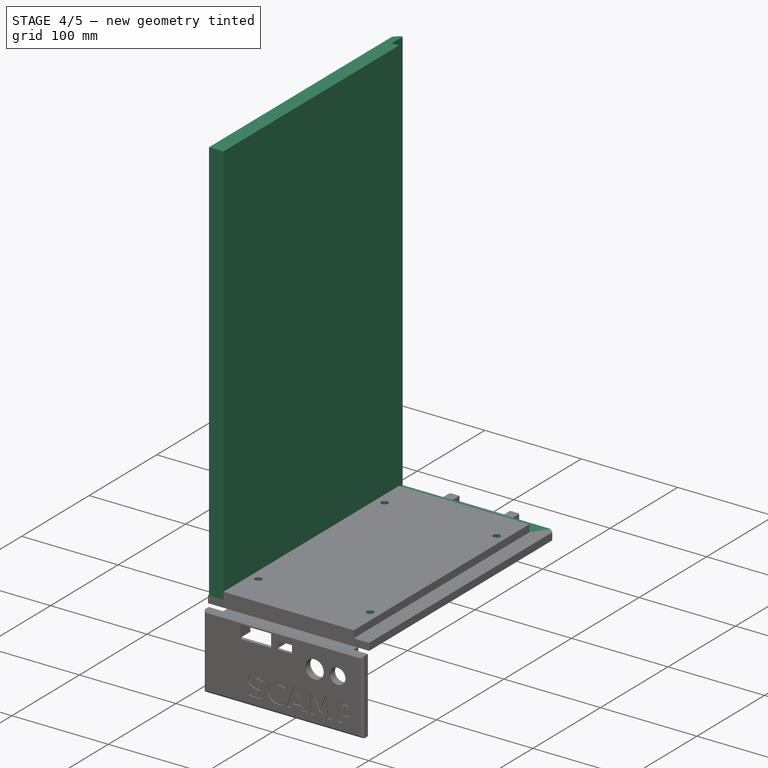
[diagram: stage 4 of 5 — iso view after this stage's code; geometry added in this stage tinted green]
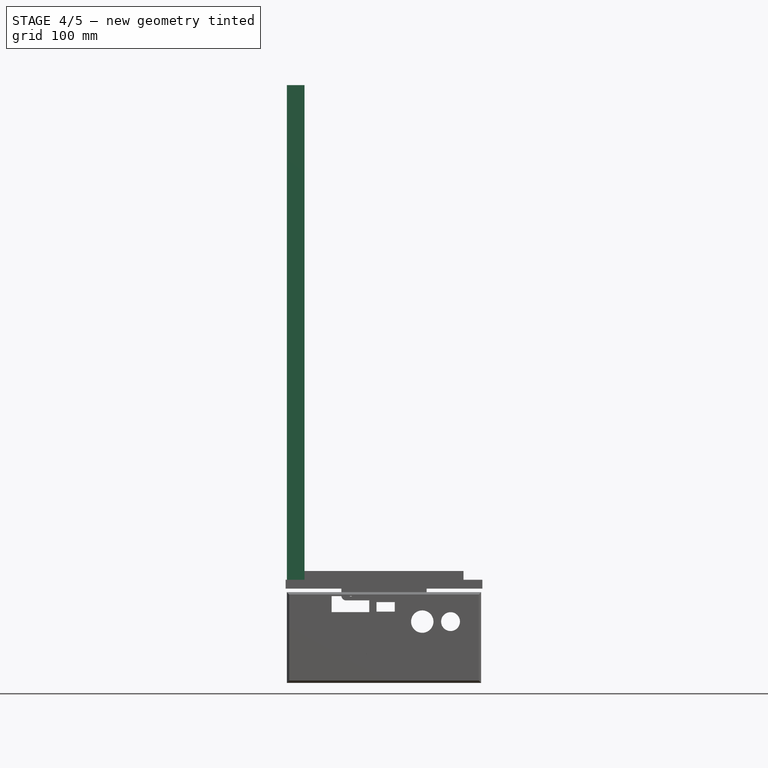
[diagram: stage 4 of 5 — front view after this stage's code; geometry added in this stage tinted green]
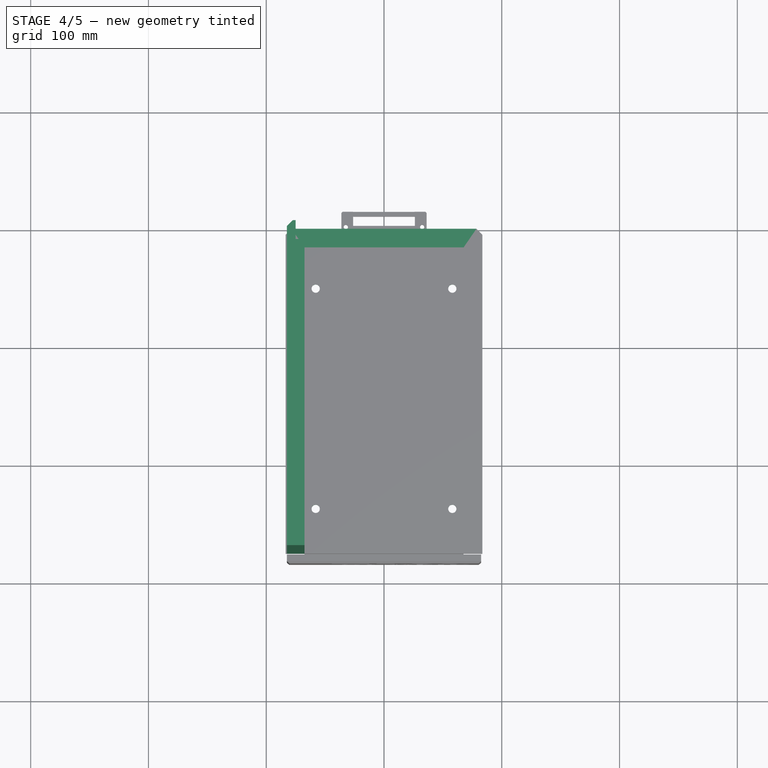
[diagram: stage 4 of 5 — top view after this stage's code; geometry added in this stage tinted green]
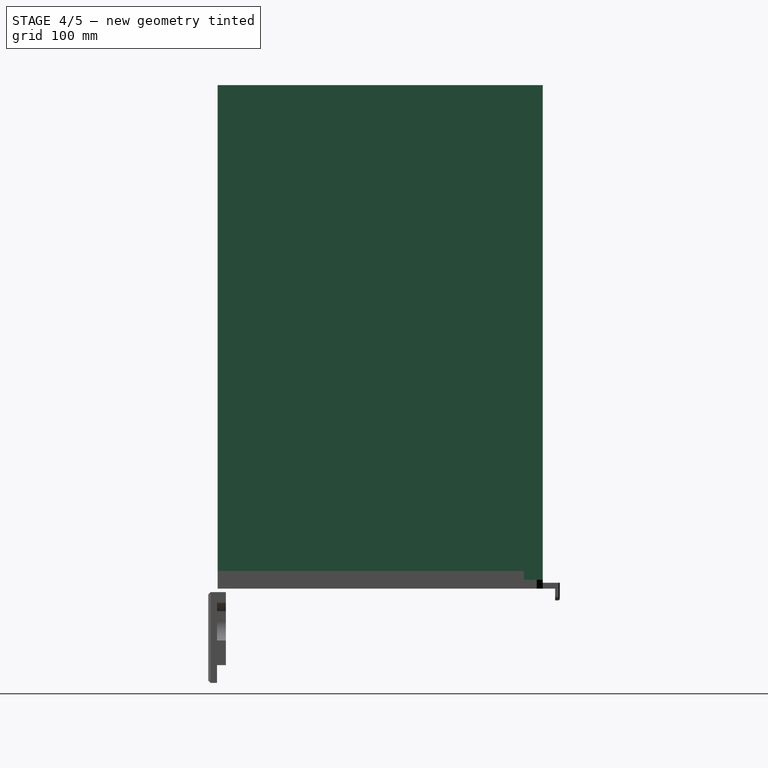
[diagram: stage 4 of 5 — right view after this stage's code; geometry added in this stage tinted green]
FEATURE [Sketcher::SketchObject] Sketch001
  ExternalGeometry = -> [Pad]
  FullyConstrained = true
  MapMode = 5
  Placement = pos=(0,0,15) rot=(0,0,1;3.14159rad)
  Support = -> [Pad]
  sketch-geometry (4):
    g0: LineSegment StartX=-83.5 StartY=0 StartZ=0 EndX=83.5 EndY=0 EndZ=0
    g1: LineSegment StartX=83.5 StartY=0 StartZ=0 EndX=83.5 EndY=16 EndZ=0
    g2: LineSegment StartX=83.5 StartY=16 StartZ=0 EndX=-83.5 EndY=16 EndZ=0
    g3: LineSegment StartX=-83.5 StartY=16 StartZ=0 EndX=-83.5 EndY=0 EndZ=0
  constraints (10):
    c: Coincident(g0,g1)
    c: Coincident(g1,g2)
    c: Coincident(g2,g3)
    c: Coincident(g3,g0)
    c: Horizontal(g2)
    c: Vertical(g1)
    c: Vertical(g3)
    c: Coincident(g0,g-3)
    c: DistanceY(g1,g1) = 16
    c: Symmetric(g0,g0,g-2)
FEATURE [PartDesign::Pocket] Pocket  label="BackGroove"
  BaseFeature = -> Pad
  Length = 7.5
  Length2 = 100
  Placement = pos=(0,0,0) rot=(1,0,0;1.5708rad)
  Profile = -> Sketch001
  Refine = true
  Type = 0
FEATURE [Sketcher::SketchObject] Sketch002
  ExternalGeometry = -> [Pocket]
  FullyConstrained = true
  MapMode = 5
  Placement = pos=(0,0,15) rot=(0,0,1;3.14159rad)
  Support = -> [Pocket]
  sketch-geometry (8):
    g0: LineSegment StartX=-58 StartY=238 StartZ=0 EndX=58 EndY=238 EndZ=0
    g1: LineSegment StartX=58 StartY=238 StartZ=0 EndX=58 EndY=51 EndZ=0
    g2: LineSegment StartX=58 StartY=51 StartZ=0 EndX=-58 EndY=51 EndZ=0
    g3: LineSegment StartX=-58 StartY=51 StartZ=0 EndX=-58 EndY=238 EndZ=0
    g4: Circle CenterX=-58 CenterY=238 CenterZ=0 NormalX=0 NormalY=0 NormalZ=1 AngleXU=0 Radius=3.5
    g5: Circle CenterX=58 CenterY=238 CenterZ=0 NormalX=0 NormalY=0 NormalZ=1 AngleXU=0 Radius=3.5
    g6: Circle CenterX=58 CenterY=51 CenterZ=0 NormalX=0 NormalY=0 NormalZ=1 AngleXU=0 Radius=3.5
    g7: Circle CenterX=-58 CenterY=51 CenterZ=0 NormalX=0 NormalY=0 NormalZ=1 AngleXU=0 Radius=3.5
  constraints (21):
    c: Coincident(g0,g1)
    c: Coincident(g1,g2)
    c: Coincident(g2,g3)
    c: Coincident(g3,g0)
    c: Horizontal(g0)
    c: Vertical(g1)
    c: Vertical(g3)
    c: Symmetric(g1,g2,g-2)
    c: DistanceX(g2,g2) = 116
    c: Coincident(g4,g0)
    c: Coincident(g5,g0)
    c: Coincident(g6,g1)
    c: Coincident(g7,g2)
    c: Equal(g7,g6)
    c: Equal(g6,g5)
    c: Equal(g5,g4)
    c: Radius(g4) = 3.5
    c: DistanceY(g3,g3) = 187
    c: DistanceY(g-3,g-3) = 260
    c: DistanceY(g-3,g7) = 35
    c: DistanceY(g4,g-3) = 38
FEATURE [PartDesign::Pocket] Pocket001  label="Holes"
  BaseFeature = -> Pocket
  Length = 5
  Length2 = 100
  Placement = pos=(0,0,0) rot=(1,0,0;1.5708rad)
  Profile = -> Sketch002
  Refine = true
  Type = 1
FEATURE [Sketcher::SketchObject] Sketch003
  ExternalGeometry = -> [Pocket001]
  FullyConstrained = true
  MapMode = 5
  Placement = pos=(0,0,0) rot=(1,0,0;3.14159rad)
  Support = -> [Pocket001]
  sketch-geometry (4):
    g0: Circle CenterX=-58 CenterY=238 CenterZ=0 NormalX=0 NormalY=0 NormalZ=1 AngleXU=0 Radius=8
    g1: Circle CenterX=58 CenterY=238 CenterZ=0 NormalX=0 NormalY=0 NormalZ=1 AngleXU=0 Radius=8
    g2: Circle CenterX=-58 CenterY=51 CenterZ=0 NormalX=0 NormalY=0 NormalZ=1 AngleXU=0 Radius=8
    g3: Circle CenterX=58 CenterY=51 CenterZ=0 NormalX=0 NormalY=0 NormalZ=1 AngleXU=0 Radius=8
  constraints (8):
    c: Coincident(g0,g-3)
    c: Coincident(g1,g-4)
    c: Coincident(g2,g-6)
    c: Coincident(g3,g-5)
    c: Equal(g3,g2)
    c: Equal(g2,g0)
    c: Equal(g0,g1)
    c: Radius(g0) = 8
FEATURE [PartDesign::Pocket] Pocket002  label="CounterSink"
  BaseFeature = -> Pocket001
  Length = 10
  Length2 = 100
  Placement = pos=(0,0,0) rot=(1,0,0;1.5708rad)
  Profile = -> Sketch003
  Refine = true
  Type = 0
FEATURE [PartDesign::Body] Body001  label="BackBottom"
  Group = -> [Sketch004,Pad001]
  Origin = -> Origin001
  Placement = pos=(0,0,-80) rot=(0,0,1;0rad)
  Tip = -> Pad001
FEATURE [Sketcher::SketchObject] Sketch005
  FullyConstrained = true
  MapMode = 5
  Placement = pos=(0,0,0) rot=(1,0,0;1.5708rad)
  Support = -> [XZ_Plane002]
  sketch-geometry (4):
    g0: LineSegment StartX=-82.5 StartY=7.5 StartZ=0 EndX=-67.5 EndY=7.5 EndZ=0
    g1: LineSegment StartX=-67.5 StartY=7.5 StartZ=0 EndX=-67.5 EndY=427.5 EndZ=0
    g2: LineSegment StartX=-67.5 StartY=427.5 StartZ=0 EndX=-82.5 EndY=427.5 EndZ=0
    g3: LineSegment StartX=-82.5 StartY=427.5 StartZ=0 EndX=-82.5 EndY=7.5 EndZ=0
  constraints (12):
    c: Coincident(g0,g1)
    c: Coincident(g1,g2)
    c: Coincident(g2,g3)
    c: Coincident(g3,g0)
    c: Horizontal(g0)
    c: Horizontal(g2)
    c: Vertical(g1)
    c: Vertical(g3)
    c: DistanceX(g2,g2) = 15
    c: DistanceX(g1,g-1) = 67.5
    c: DistanceY(g-1,g0) = 7.5
    c: DistanceY(g3,g3) = 420
FEATURE [PartDesign::Pad] Pad002
  Direction = (0,-1,-2e-16)
  Length = 276
  Length2 = 100
  Placement = pos=(0,0,0) rot=(1,0,0;1.5708rad)
  Profile = -> Sketch005
  Refine = true
  Type = 0
FEATURE [Sketcher::SketchObject] Sketch006
  ExternalGeometry = -> [Pad002]
  FullyConstrained = true
  MapMode = 5
  Placement = pos=(-67.5,0,0) rot=(0.707107,0,0.707107;3.14159rad)
  Support = -> [Pad002]
  sketch-geometry (4):
    g0: LineSegment StartX=427.5 StartY=-2.984e-13 StartZ=0 EndX=0 EndY=0 EndZ=0
    g1: LineSegment StartX=0 StartY=0 StartZ=0 EndX=0 EndY=16 EndZ=0
    g2: LineSegment StartX=0 StartY=16 StartZ=0 EndX=427.5 EndY=16 EndZ=0
    g3: LineSegment StartX=427.5 StartY=16 StartZ=0 EndX=427.5 EndY=-2.984e-13 EndZ=0
  constraints (10):
    c: Coincident(g0,g1)
    c: Coincident(g1,g2)
    c: Coincident(g2,g3)
    c: Coincident(g3,g0)
    c: Horizontal(g2)
    c: Vertical(g1)
    c: Vertical(g3)
    c: Coincident(g0,g-3)
    c: Coincident(g0,g-1)
    c: DistanceY(g1,g1) = 16
FEATURE [PartDesign::Pocket] Pocket003
  BaseFeature = -> Pad002
  Length = 7.5
  Length2 = 100
  Placement = pos=(0,0,0) rot=(1,0,0;1.5708rad)
  Profile = -> Sketch006
  Refine = true
  Type = 0
FEATURE [PartDesign::Body] Body003  label="Top"
  Group = -> [Sketch007,Pad003,Sketch008,Pocket004,Sketch009,Pocket005,Sketch011,Pocket006,Chamfer]
  Origin = -> Origin003
  Tip = -> Chamfer
FEATURE [PartDesign::Chamfer] Chamfer001
  Angle = 45
  Base = -> Pocket003 [Edge7]
  BaseFeature = -> Pocket003
  ChamferType = 0
  FlipDirection = false
  Placement = pos=(0,0,0) rot=(1,0,0;1.5708rad)
  Refine = true
  Size = 5
  Size2 = 1
  SupportTransform = false
FEATURE [PartDesign::Body] Body002  label="Side"
  Group = -> [Sketch005,Pad002,Sketch006,Pocket003,Chamfer001]
  Origin = -> Origin002
  Tip = -> Chamfer001
FEATURE [PartDesign::Chamfer] Chamfer002
  Angle = 45
  Base = -> Pocket002 [Edge3,Edge19]
  BaseFeature = -> Pocket002
  ChamferType = 0
  FlipDirection = false
  Placement = pos=(0,0,0) rot=(1,0,0;1.5708rad)
  Refine = true
  Size = 5
  Size2 = 1
  SupportTransform = false
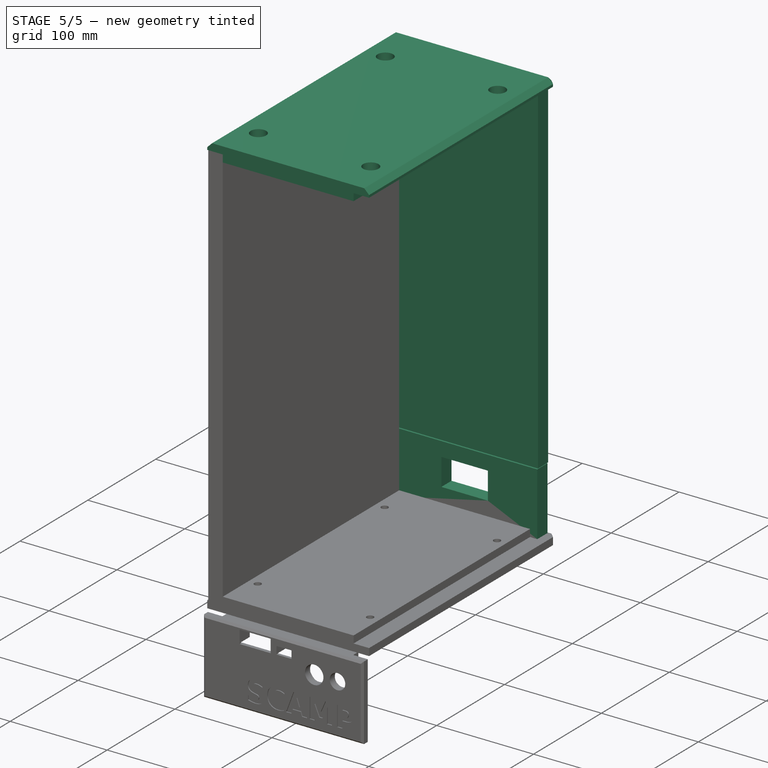
[diagram: stage 5 of 5 — iso view after this stage's code; geometry added in this stage tinted green]
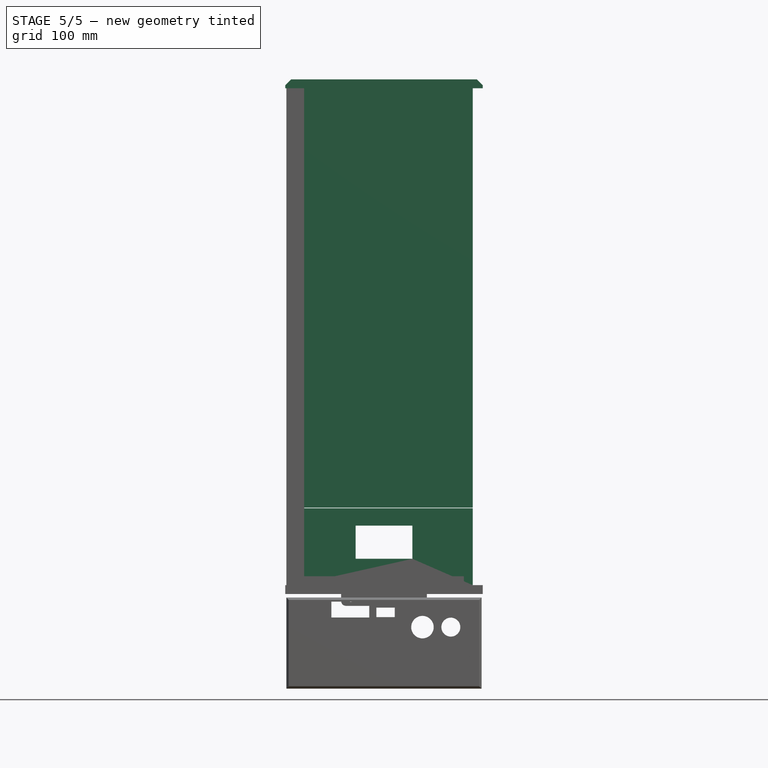
[diagram: stage 5 of 5 — front view after this stage's code; geometry added in this stage tinted green]
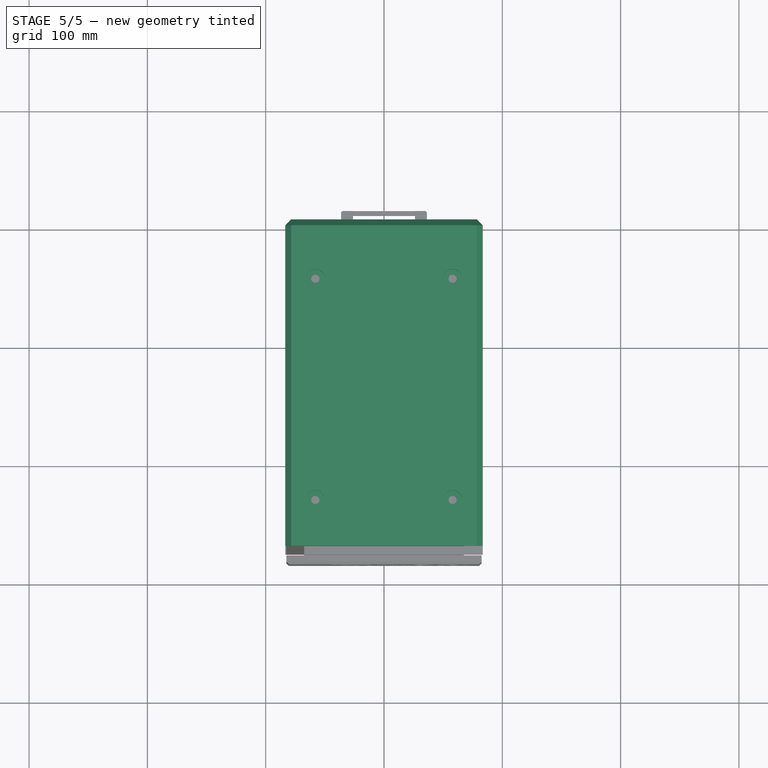
[diagram: stage 5 of 5 — top view after this stage's code; geometry added in this stage tinted green]
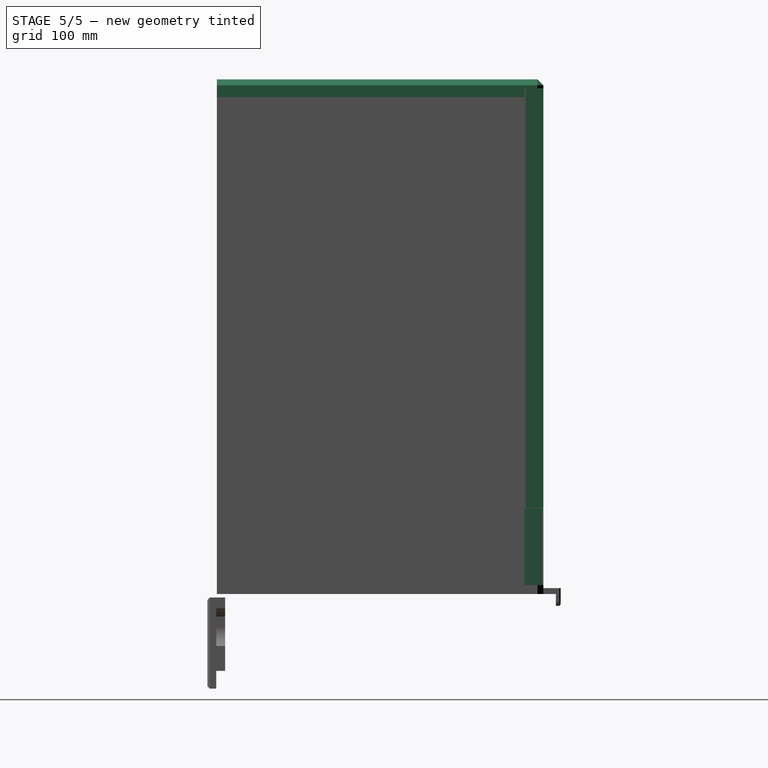
[diagram: stage 5 of 5 — right view after this stage's code; geometry added in this stage tinted green]
FEATURE [Sketcher::SketchObject] Sketch004
  AttachmentOffset = pos=(0,0,1) rot=(0,0,1;0rad)
  FullyConstrained = true
  MapMode = 5
  Placement = pos=(0,-1,-2e-16) rot=(1,0,0;1.5708rad)
  Support = -> [XZ_Plane001]
  sketch-geometry (10):
    g0: LineSegment StartX=75 StartY=7.5 StartZ=0 EndX=-75 EndY=7.5 EndZ=0
    g1: LineSegment StartX=-75 StartY=7.5 StartZ=0 EndX=-75 EndY=72.5 EndZ=0
    g2: LineSegment StartX=-75 StartY=72.5 StartZ=0 EndX=75 EndY=72.5 EndZ=0
    g3: LineSegment StartX=75 StartY=72.5 StartZ=0 EndX=75 EndY=7.5 EndZ=0
    g4: LineSegment StartX=-24 StartY=57.75 StartZ=0 EndX=24 EndY=57.75 EndZ=0
    g5: LineSegment StartX=24 StartY=57.75 StartZ=0 EndX=24 EndY=29.75 EndZ=0
    g6: LineSegment StartX=24 StartY=29.75 StartZ=0 EndX=-24 EndY=29.75 EndZ=0
    g7: LineSegment StartX=-24 StartY=29.75 StartZ=0 EndX=-24 EndY=57.75 EndZ=0
    g8: LineSegment StartX=-75 StartY=15 StartZ=0 EndX=75 EndY=15 EndZ=0
    g9: LineSegment StartX=-24 StartY=43.75 StartZ=0 EndX=24 EndY=43.75 EndZ=0
  constraints (28):
    c: Coincident(g0,g1)
    c: Coincident(g1,g2)
    c: Coincident(g2,g3)
    c: Coincident(g3,g0)
    c: Horizontal(g2)
    c: Vertical(g1)
    c: Vertical(g3)
    c: DistanceY(g-1,g0) = 7.5
    c: DistanceX(g0,g0) = 150
    c: Symmetric(g0,g0,g-2)
    c: DistanceY(g1,g1) = 65
    c: Coincident(g4,g5)
    c: Coincident(g5,g6)
    c: Coincident(g6,g7)
    c: Coincident(g7,g4)
    c: Horizontal(g6)
    c: Vertical(g5)
    c: Vertical(g7)
    c: Symmetric(g4,g4,g-2)
    c: DistanceY(g7,g7) = 28
    c: DistanceX(g4,g4) = 48
    c: PointOnObject(g8,g1)
    c: Horizontal(g8)
    c: DistanceY(g0,g8) = 7.5
    c: PointOnObject(g9,g7)
    c: PointOnObject(g9,g5)
    c: Symmetric(g4,g5,g9)
    c: Symmetric(g2,g8,g9)
FEATURE [PartDesign::Pad] Pad001
  Direction = (0,-1,-2e-16)
  Length = 15
  Length2 = 100
  Placement = pos=(0,0,0) rot=(1,0,0;1.5708rad)
  Profile = -> Sketch004
  Refine = true
  Type = 0
FEATURE [Sketcher::SketchObject] Sketch007
  FullyConstrained = true
  MapMode = 5
  Placement = pos=(0,0,0) rot=(1,0,0;1.5708rad)
  Support = -> [XZ_Plane003]
  sketch-geometry (8):
    g0: LineSegment StartX=-83.5 StartY=435 StartZ=0 EndX=-83.5 EndY=427.5 EndZ=0
    g1: LineSegment StartX=-83.5 StartY=427.5 StartZ=0 EndX=-67.5 EndY=427.5 EndZ=0
    g2: LineSegment StartX=-67.5 StartY=427.5 StartZ=0 EndX=-67.5 EndY=420 EndZ=0
    g3: LineSegment StartX=-67.5 StartY=420 StartZ=0 EndX=67.5 EndY=420 EndZ=0
    g4: LineSegment StartX=67.5 StartY=420 StartZ=0 EndX=67.5 EndY=427.5 EndZ=0
    g5: LineSegment StartX=67.5 StartY=427.5 StartZ=0 EndX=83.5 EndY=427.5 EndZ=0
    g6: LineSegment StartX=83.5 StartY=427.5 StartZ=0 EndX=83.5 EndY=435 EndZ=0
    g7: LineSegment StartX=83.5 StartY=435 StartZ=0 EndX=-83.5 EndY=435 EndZ=0
  constraints (22):
    c: Vertical(g0)
    c: Coincident(g0,g1)
    c: Horizontal(g1)
    c: Coincident(g1,g2)
    c: Vertical(g2)
    c: Coincident(g2,g3)
    c: Horizontal(g3)
    c: Coincident(g3,g4)
    c: Vertical(g4)
    c: Coincident(g4,g5)
    c: Horizontal(g5)
    c: Coincident(g5,g6)
    c: Coincident(g6,g7)
    c: Coincident(g7,g0)
    c: DistanceY(g2,g0) = 15
    c: DistanceY(g2,g2) = 7.5
    c: Symmetric(g1,g4,g-2)
    c: Vertical(g6)
    c: Symmetric(g6,g0,g-2)
    c: DistanceX(g1,g-1) = 67.5
    c: DistanceX(g1,g1) = 16
    c: DistanceY(g-1,g2) = 420
FEATURE [PartDesign::Pad] Pad003
  Direction = (0,-1,-2e-16)
  Length = 276
  Length2 = 100
  Placement = pos=(0,0,0) rot=(1,0,0;1.5708rad)
  Profile = -> Sketch007
  Refine = true
  Type = 0
FEATURE [Sketcher::SketchObject] Sketch008
  FullyConstrained = true
  MapMode = 5
  Placement = pos=(0,9.33e-14,420) rot=(1,0,0;3.14159rad)
  Support = -> [Pad003]
  sketch-geometry (8):
    g0: LineSegment StartX=-58 StartY=237 StartZ=0 EndX=58 EndY=237 EndZ=0
    g1: LineSegment StartX=58 StartY=237 StartZ=0 EndX=58 EndY=50 EndZ=0
    g2: LineSegment StartX=58 StartY=50 StartZ=0 EndX=-58 EndY=50 EndZ=0
    g3: LineSegment StartX=-58 StartY=50 StartZ=0 EndX=-58 EndY=237 EndZ=0
    g4: Circle CenterX=-58 CenterY=237 CenterZ=0 NormalX=0 NormalY=0 NormalZ=1 AngleXU=0 Radius=3.5
    g5: Circle CenterX=58 CenterY=237 CenterZ=0 NormalX=0 NormalY=0 NormalZ=1 AngleXU=0 Radius=3.5
    g6: Circle CenterX=-58 CenterY=50 CenterZ=0 NormalX=0 NormalY=0 NormalZ=1 AngleXU=0 Radius=3.5
    g7: Circle CenterX=58 CenterY=50 CenterZ=0 NormalX=0 NormalY=0 NormalZ=1 AngleXU=0 Radius=3.5
  constraints (19):
    c: Coincident(g0,g1)
    c: Coincident(g1,g2)
    c: Coincident(g2,g3)
    c: Coincident(g3,g0)
    c: Horizontal(g0)
    c: Vertical(g1)
    c: Vertical(g3)
    c: DistanceX(g2,g1) = 116
    c: Symmetric(g2,g1,g-2)
    c: DistanceY(g2,g0) = 187
    c: DistanceY(g-1,g2) = 50
    c: Coincident(g4,g0)
    c: Coincident(g5,g0)
    c: Coincident(g6,g2)
    c: Coincident(g7,g1)
    c: Equal(g7,g6)
    c: Equal(g6,g4)
    c: Equal(g4,g5)
    c: Radius(g4) = 3.5
FEATURE [PartDesign::Pocket] Pocket004
  BaseFeature = -> Pad003
  Length = 5
  Length2 = 100
  Placement = pos=(0,0,0) rot=(1,0,0;1.5708rad)
  Profile = -> Sketch008
  Refine = true
  Type = 1
FEATURE [Sketcher::SketchObject] Sketch009
  ExternalGeometry = -> [Pocket004]
  FullyConstrained = true
  MapMode = 5
  Placement = pos=(0,9.66e-14,435) rot=(0,0,1;3.14159rad)
  Support = -> [Pocket004]
  sketch-geometry (4):
    g0: Circle CenterX=-58 CenterY=237 CenterZ=0 NormalX=0 NormalY=0 NormalZ=1 AngleXU=0 Radius=8
    g1: Circle CenterX=58 CenterY=237 CenterZ=0 NormalX=0 NormalY=0 NormalZ=1 AngleXU=0 Radius=8
    g2: Circle CenterX=58 CenterY=50 CenterZ=0 NormalX=0 NormalY=0 NormalZ=1 AngleXU=0 Radius=8
    g3: Circle CenterX=-58 CenterY=50 CenterZ=0 NormalX=0 NormalY=0 NormalZ=1 AngleXU=0 Radius=8
  constraints (8):
    c: Coincident(g0,g-3)
    c: Coincident(g1,g-4)
    c: Coincident(g2,g-5)
    c: Coincident(g3,g-6)
    c: Equal(g3,g2)
    c: Equal(g2,g1)
    c: Equal(g1,g0)
    c: Radius(g0) = 8
FEATURE [PartDesign::Pocket] Pocket005
  BaseFeature = -> Pocket004
  Length = 10
  Length2 = 100
  Placement = pos=(0,0,0) rot=(1,0,0;1.5708rad)
  Profile = -> Sketch009
  Refine = true
  Type = 0
FEATURE [Sketcher::SketchObject] Sketch010
  FullyConstrained = true
  MapMode = 5
  Placement = pos=(0,0,0) rot=(1,0,0;1.5708rad)
  Support = -> [XZ_Plane004]
  sketch-geometry (4):
    g0: LineSegment StartX=-75 StartY=427.5 StartZ=0 EndX=75 EndY=427.5 EndZ=0
    g1: LineSegment StartX=75 StartY=427.5 StartZ=0 EndX=75 EndY=73 EndZ=0
    g2: LineSegment StartX=75 StartY=73 StartZ=0 EndX=-75 EndY=73 EndZ=0
    g3: LineSegment StartX=-75 StartY=73 StartZ=0 EndX=-75 EndY=427.5 EndZ=0
  constraints (11):
    c: Coincident(g0,g1)
    c: Coincident(g1,g2)
    c: Coincident(g2,g3)
    c: Coincident(g3,g0)
    c: Horizontal(g2)
    c: Vertical(g1)
    c: Vertical(g3)
    c: Symmetric(g0,g0,g-2)
    c: DistanceX(g0,g0) = 150
    c: DistanceY(g-1,g1) = 73
    c: DistanceY(g3,g3) = 354.5
FEATURE [PartDesign::Pad] Pad004
  Direction = (0,-1,-2e-16)
  Length = 15
  Length2 = 100
  Placement = pos=(0,0,0) rot=(1,0,0;1.5708rad)
  Profile = -> Sketch010
  Refine = true
  Type = 0
FEATURE [PartDesign::Body] Body004  label="Back"
  Group = -> [Sketch010,Pad004]
  Origin = -> Origin004
  Placement = pos=(0,-1,0) rot=(0,0,1;0rad)
  Tip = -> Pad004
FEATURE [Sketcher::SketchObject] Sketch011
  ExternalGeometry = -> [Pocket005]
  FullyConstrained = true
  MapMode = 5
  Placement = pos=(0,9.33e-14,420) rot=(1,0,0;3.14159rad)
  Support = -> [Pocket005]
  sketch-geometry (4):
    g0: LineSegment StartX=-83.5 StartY=0 StartZ=0 EndX=83.5 EndY=0 EndZ=0
    g1: LineSegment StartX=83.5 StartY=0 StartZ=0 EndX=83.5 EndY=16 EndZ=0
    g2: LineSegment StartX=83.5 StartY=16 StartZ=0 EndX=-83.5 EndY=16 EndZ=0
    g3: LineSegment StartX=-83.5 StartY=16 StartZ=0 EndX=-83.5 EndY=0 EndZ=0
  constraints (10):
    c: Coincident(g0,g1)
    c: Coincident(g1,g2)
    c: Coincident(g2,g3)
    c: Coincident(g3,g0)
    c: Horizontal(g2)
    c: Vertical(g1)
    c: Vertical(g3)
    c: Coincident(g0,g-3)
    c: Symmetric(g0,g0,g-2)
    c: DistanceY(g1,g1) = 16
FEATURE [PartDesign::Pocket] Pocket006
  BaseFeature = -> Pocket005
  Length = 7.5
  Length2 = 100
  Placement = pos=(0,0,0) rot=(1,0,0;1.5708rad)
  Profile = -> Sketch011
  Refine = true
  Type = 0
FEATURE [PartDesign::Chamfer] Chamfer
  Angle = 45
  Base = -> Pocket006 [Edge3,Edge12,Edge1,Edge6,Edge5]
  BaseFeature = -> Pocket006
  ChamferType = 0
  FlipDirection = false
  Placement = pos=(0,0,0) rot=(1,0,0;1.5708rad)
  Refine = true
  Size = 5
  Size2 = 1
  SupportTransform = false
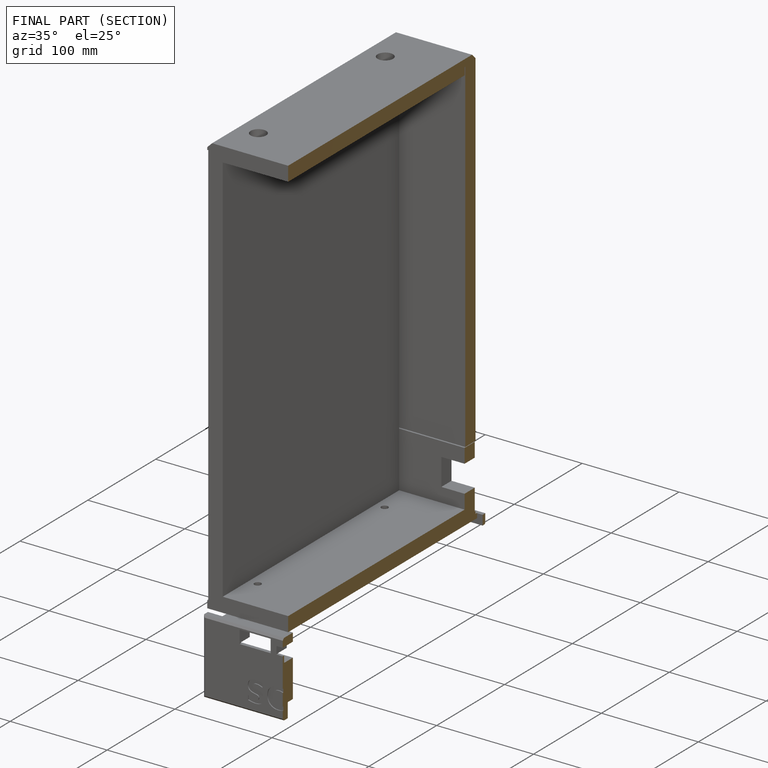
[diagram: finished part — half-section view (interior)]
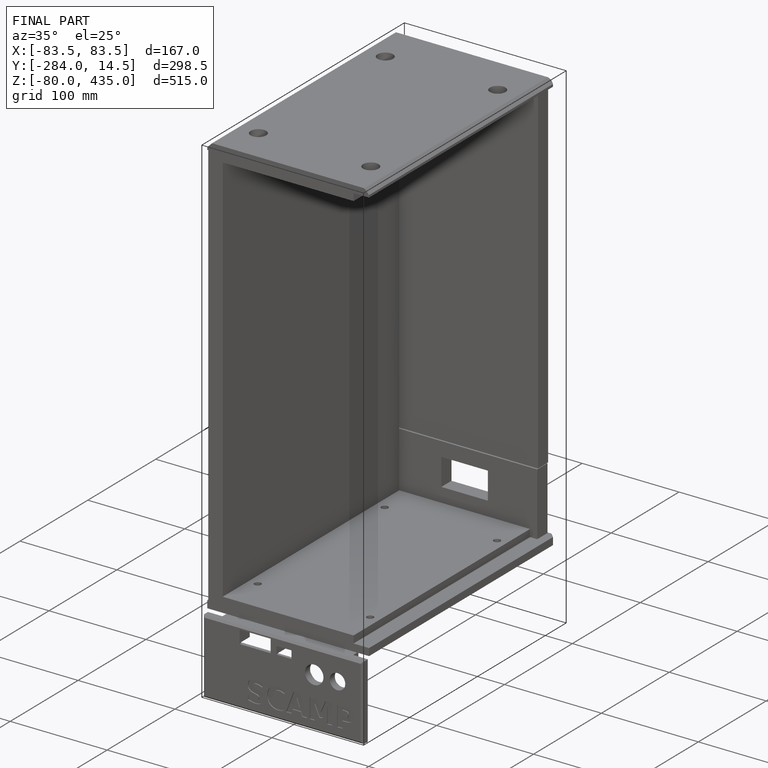
[diagram: finished part — iso view with bounding-box wireframe]
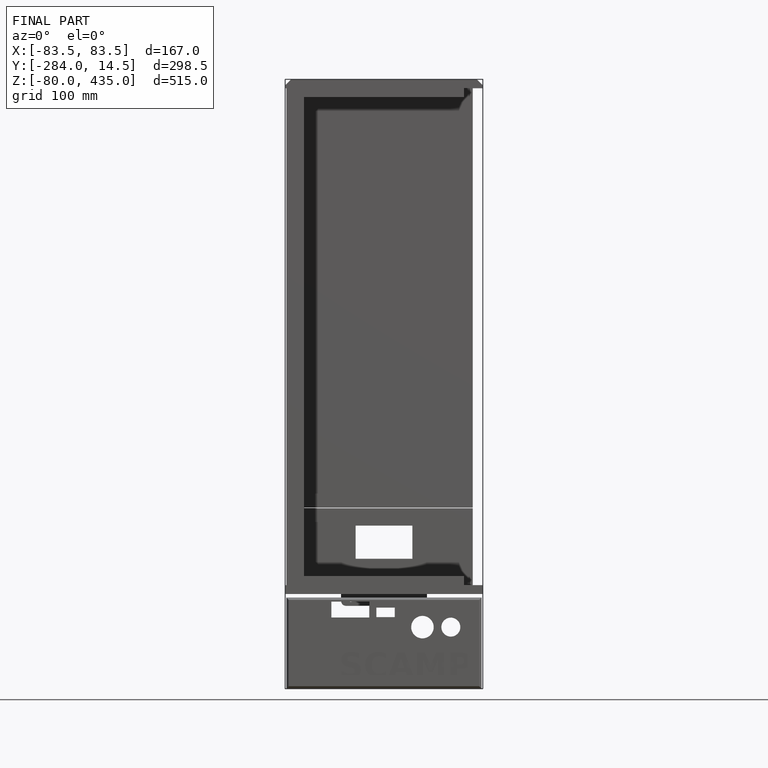
[diagram: finished part — front view with bounding-box wireframe]
